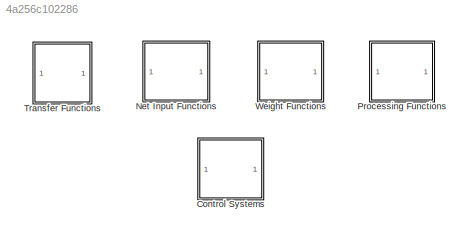
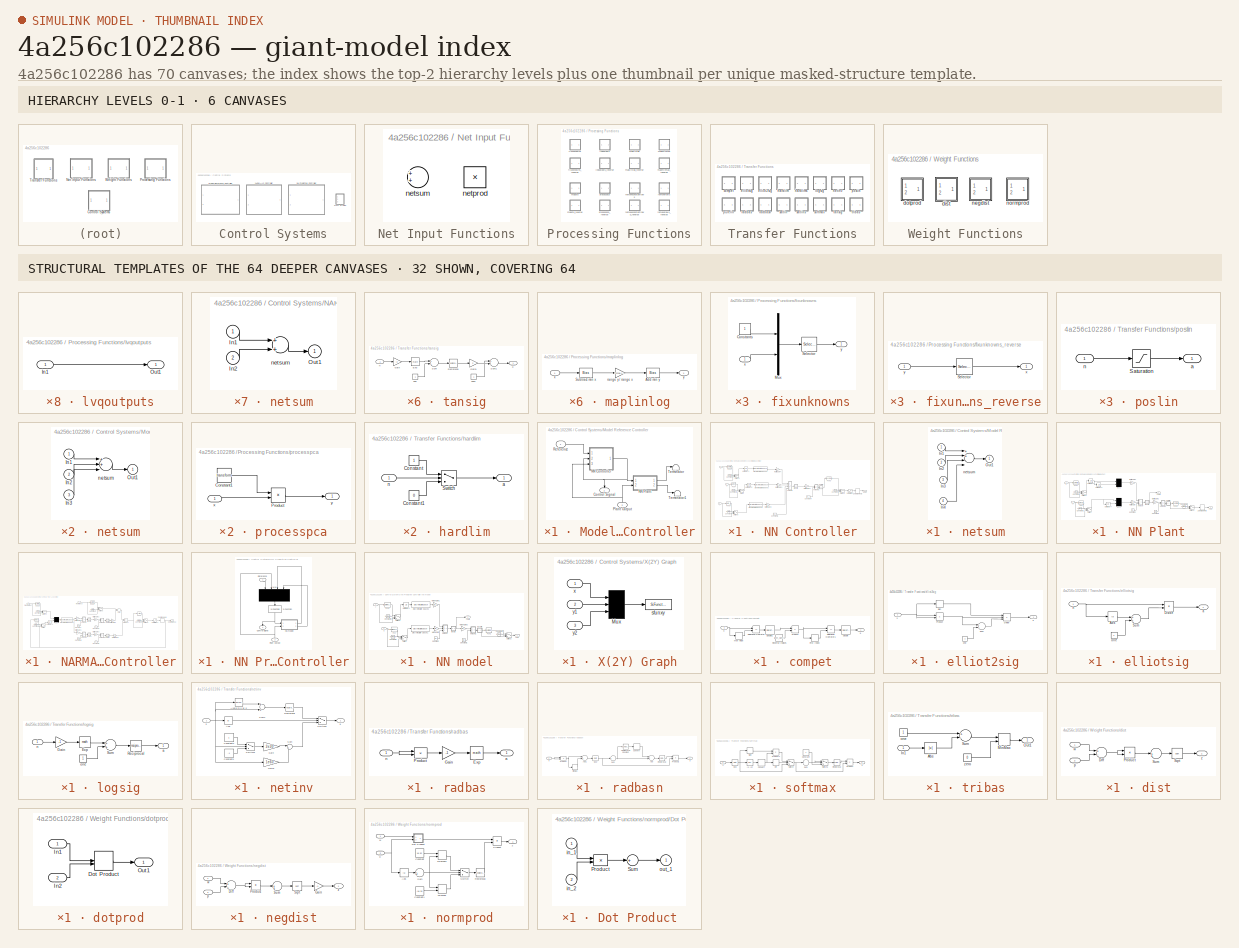
[diagram: thumbnail index - top-2 hierarchy levels (6 canvases) + 32 structural-template representatives of the remaining 64 canvases]
MODEL slx_4a256c102286
KIND library
BLOCK [SubSystem] Control Systems
  Ports = []
  RequestExecContextInheritance = off
BLOCK [SubSystem] Control Systems/Model Reference Controller
  OpenFcn = nncontrolutil('nnmodref','',gcbh,gcb,'');
  Ports = [2, 1]
  RequestExecContextInheritance = off
BLOCK [Outport] Control Systems/Model Reference Controller/Control Signal
  IconDisplay = Port number
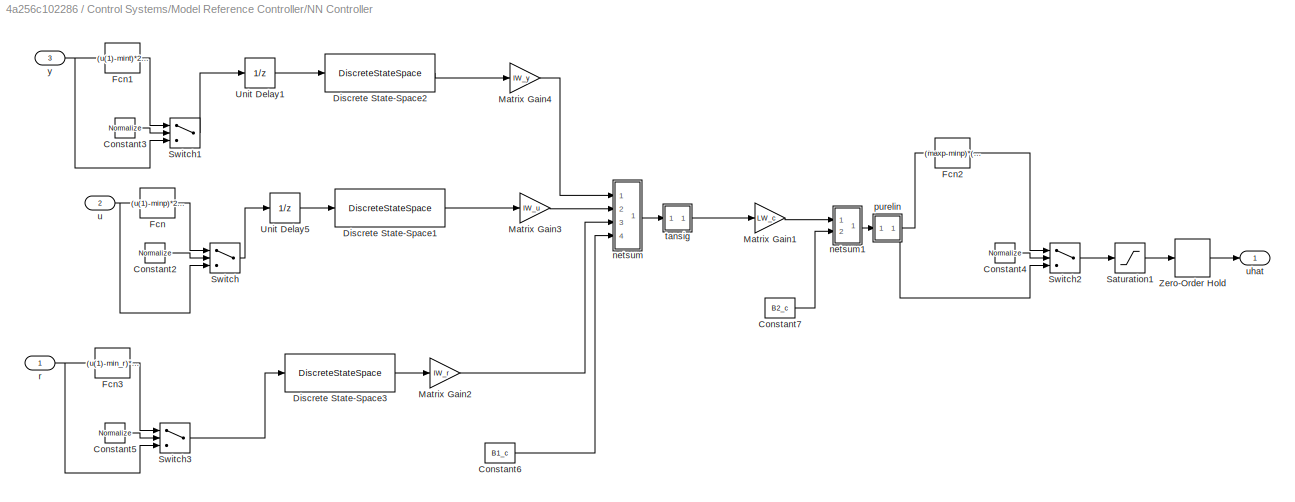
BLOCK [SubSystem] Control Systems/Model Reference Controller/NN Controller
  Ports = [3, 1]
  RequestExecContextInheritance = off
BLOCK [Constant] Control Systems/Model Reference Controller/NN Controller/Constant2
  Value = Normalize
BLOCK [Constant] Control Systems/Model Reference Controller/NN Controller/Constant3
  Value = Normalize
BLOCK [Constant] Control Systems/Model Reference Controller/NN Controller/Constant4
  Value = Normalize
BLOCK [Constant] Control Systems/Model Reference Controller/NN Controller/Constant5
  Value = Normalize
BLOCK [Constant] Control Systems/Model Reference Controller/NN Controller/Constant6
  Value = B1_c
BLOCK [Constant] Control Systems/Model Reference Controller/NN Controller/Constant7
  Value = B2_c
BLOCK [DiscreteStateSpace] Control Systems/Model Reference Controller/NN Controller/Discrete State-Space1
  A = [zeros(1,max([Nic-1 1]));eye(Nic-2,Nic-1)]
  B = eye(max([Nic-1 1]),1)
  C = [zeros(1,max([Nic-1 1]));eye(Nic-1,Nic-1)]
  D = eye(Nic,1)
  SampleTime = Ts
BLOCK [DiscreteStateSpace] Control Systems/Model Reference Controller/NN Controller/Discrete State-Space2
  A = [zeros(1,max([Njc-1 1]));eye(Njc-2,Njc-1)]
  B = eye(max([Njc-1 1]),1)
  C = [zeros(1,max([Njc-1 1]));eye(Njc-1,Njc-1)]
  D = eye(Njc,1)
  SampleTime = Ts
BLOCK [DiscreteStateSpace] Control Systems/Model Reference Controller/NN Controller/Discrete State-Space3
  A = [zeros(1,max([Nrc-1 1]));eye(Nrc-2,Nrc-1)]
  B = eye(max([Nrc-1 1]),1)
  C = [zeros(1,max([Nrc-1 1]));eye(Nrc-1,Nrc-1)]
  D = eye(Nrc,1)
  SampleTime = Ts
BLOCK [Fcn] Control Systems/Model Reference Controller/NN Controller/Fcn
  Expr = (u(1)-minp)*2/(maxp-minp) - 1
BLOCK [Fcn] Control Systems/Model Reference Controller/NN Controller/Fcn1
  Expr = (u(1)-mint)*2/(maxt-mint) - 1
BLOCK [Fcn] Control Systems/Model Reference Controller/NN Controller/Fcn2
  Expr = (maxp-minp)*(u(1)+1)/2 + minp
BLOCK [Fcn] Control Systems/Model Reference Controller/NN Controller/Fcn3
  Expr = (u(1)-min_r)*2/(max_r-min_r) - 1
BLOCK [Gain] Control Systems/Model Reference Controller/NN Controller/Matrix Gain1
  Gain = LW_c
  Multiplication = Matrix(K*u)
BLOCK [Gain] Control Systems/Model Reference Controller/NN Controller/Matrix Gain2
  Gain = IW_r
  Multiplication = Matrix(K*u)
BLOCK [Gain] Control Systems/Model Reference Controller/NN Controller/Matrix Gain3
  Gain = IW_u
  Multiplication = Matrix(K*u)
BLOCK [Gain] Control Systems/Model Reference Controller/NN Controller/Matrix Gain4
  Gain = IW_y
  Multiplication = Matrix(K*u)
BLOCK [Saturate] Control Systems/Model Reference Controller/NN Controller/Saturation1
  InputPortMap = u0
  LowerLimit = min_i
  Ports = [1, 1]
  UpperLimit = max_i
BLOCK [Switch] Control Systems/Model Reference Controller/NN Controller/Switch
  Threshold = 0.5
BLOCK [Switch] Control Systems/Model Reference Controller/NN Controller/Switch1
  Threshold = 0.5
BLOCK [Switch] Control Systems/Model Reference Controller/NN Controller/Switch2
  Threshold = 0.5
BLOCK [Switch] Control Systems/Model Reference Controller/NN Controller/Switch3
  Threshold = 0.5
BLOCK [UnitDelay] Control Systems/Model Reference Controller/NN Controller/Unit Delay1
  SampleTime = Ts
BLOCK [UnitDelay] Control Systems/Model Reference Controller/NN Controller/Unit Delay5
  SampleTime = Ts
BLOCK [ZeroOrderHold] Control Systems/Model Reference Controller/NN Controller/Zero-Order Hold
  SampleTime = Ts
BLOCK [SubSystem] Control Systems/Model Reference Controller/NN Controller/netsum
  Ports = [4, 1]
  RequestExecContextInheritance = off
BLOCK [Inport] Control Systems/Model Reference Controller/NN Controller/netsum/In1
  IconDisplay = Port number
BLOCK [Inport] Control Systems/Model Reference Controller/NN Controller/netsum/In2
  IconDisplay = Port number
  Port = 2
BLOCK [Inport] Control Systems/Model Reference Controller/NN Controller/netsum/In3
  IconDisplay = Port number
  Port = 3
BLOCK [Inport] Control Systems/Model Reference Controller/NN Controller/netsum/In4
  IconDisplay = Port number
  Port = 4
BLOCK [Outport] Control Systems/Model Reference Controller/NN Controller/netsum/Out1
  IconDisplay = Port number
BLOCK [Sum] Control Systems/Model Reference Controller/NN Controller/netsum/netsum
  Inputs = 4
  Ports = [4, 1]
BLOCK [SubSystem] Control Systems/Model Reference Controller/NN Controller/netsum1
  Ports = [2, 1]
  RequestExecContextInheritance = off
BLOCK [Inport] Control Systems/Model Reference Controller/NN Controller/netsum1/In1
  IconDisplay = Port number
BLOCK [Inport] Control Systems/Model Reference Controller/NN Controller/netsum1/In2
  IconDisplay = Port number
  Port = 2
BLOCK [Outport] Control Systems/Model Reference Controller/NN Controller/netsum1/Out1
  IconDisplay = Port number
BLOCK [Sum] Control Systems/Model Reference Controller/NN Controller/netsum1/netsum1
  Inputs = 2
  Ports = [2, 1]
BLOCK [SubSystem] Control Systems/Model Reference Controller/NN Controller/purelin
  Ports = [1, 1]
  RequestExecContextInheritance = off
BLOCK [Outport] Control Systems/Model Reference Controller/NN Controller/purelin/a
  IconDisplay = Port number
BLOCK [Inport] Control Systems/Model Reference Controller/NN Controller/purelin/n
  IconDisplay = Port number
BLOCK [Inport] Control Systems/Model Reference Controller/NN Controller/r
  IconDisplay = Port number
BLOCK [SubSystem] Control Systems/Model Reference Controller/NN Controller/tansig
  Ports = [1, 1]
  RequestExecContextInheritance = off
BLOCK [Math] Control Systems/Model Reference Controller/NN Controller/tansig/Exp
  Ports = [1, 1]
BLOCK [Gain] Control Systems/Model Reference Controller/NN Controller/tansig/Gain
  Gain = -2
BLOCK [Gain] Control Systems/Model Reference Controller/NN Controller/tansig/Gain1
  Gain = 2
BLOCK [Math] Control Systems/Model Reference Controller/NN Controller/tansig/Reciprocal
  Operator = reciprocal
  Ports = [1, 1]
BLOCK [Sum] Control Systems/Model Reference Controller/NN Controller/tansig/Sum
  Ports = [2, 1]
BLOCK [Sum] Control Systems/Model Reference Controller/NN Controller/tansig/Sum1
  Inputs = +-
  Ports = [2, 1]
BLOCK [Outport] Control Systems/Model Reference Controller/NN Controller/tansig/a
  IconDisplay = Port number
BLOCK [Inport] Control Systems/Model Reference Controller/NN Controller/tansig/n
  IconDisplay = Port number
BLOCK [Constant] Control Systems/Model Reference Controller/NN Controller/tansig/one
BLOCK [Constant] Control Systems/Model Reference Controller/NN Controller/tansig/one1
BLOCK [Inport] Control Systems/Model Reference Controller/NN Controller/u
  IconDisplay = Port number
  Port = 2
BLOCK [Outport] Control Systems/Model Reference Controller/NN Controller/uhat
  IconDisplay = Port number
BLOCK [Inport] Control Systems/Model Reference Controller/NN Controller/y
  IconDisplay = Port number
  Port = 3
BLOCK [SubSystem] Control Systems/Model Reference Controller/NN Plant
  Ports = [2, 2]
  RequestExecContextInheritance = off
BLOCK [Constant] Control Systems/Model Reference Controller/NN Plant/Constant
  Value = B1
BLOCK [Constant] Control Systems/Model Reference Controller/NN Plant/Constant1
  Value = B2
BLOCK [Constant] Control Systems/Model Reference Controller/NN Plant/Constant2
  Value = Normalize
BLOCK [Constant] Control Systems/Model Reference Controller/NN Plant/Constant3
  Value = Normalize
BLOCK [Constant] Control Systems/Model Reference Controller/NN Plant/Constant4
  Value = Normalize
BLOCK [Fcn] Control Systems/Model Reference Controller/NN Plant/Fcn
  Expr = (u(1)-minp)*2/(maxp-minp) - 1
BLOCK [Fcn] Control Systems/Model Reference Controller/NN Plant/Fcn1
  Expr = (u(1)-mint)*2/(maxt-mint) - 1
BLOCK [Fcn] Control Systems/Model Reference Controller/NN Plant/Fcn2
  Expr = (maxt-mint)*(u(1)+1)/2 + mint
BLOCK [Gain] Control Systems/Model Reference Controller/NN Plant/Matrix Gain
  Gain = IW
  Multiplication = Matrix(K*u)
BLOCK [Gain] Control Systems/Model Reference Controller/NN Plant/Matrix Gain1
  Gain = LW1_2
  Multiplication = Matrix(K*u)
BLOCK [Gain] Control Systems/Model Reference Controller/NN Plant/Matrix Gain2
  Gain = LW2_1
  Multiplication = Matrix(K*u)
BLOCK [Mux] Control Systems/Model Reference Controller/NN Plant/Mux1
  DisplayOption = signals
  Inputs = 2
  Ports = [2, 1]
BLOCK [Mux] Control Systems/Model Reference Controller/NN Plant/Mux2
  DisplayOption = signals
  Inputs = 2
  Ports = [2, 1]
BLOCK [Switch] Control Systems/Model Reference Controller/NN Plant/Switch
  Threshold = 0.5
BLOCK [Switch] Control Systems/Model Reference Controller/NN Plant/Switch1
  Threshold = 0.5
BLOCK [Switch] Control Systems/Model Reference Controller/NN Plant/Switch2
  Threshold = 0.5
BLOCK [UnitDelay] Control Systems/Model Reference Controller/NN Plant/Unit Delay1
  SampleTime = Ts
BLOCK [UnitDelay] Control Systems/Model Reference Controller/NN Plant/Unit Delay2
  SampleTime = Ts
BLOCK [UnitDelay] Control Systems/Model Reference Controller/NN Plant/Unit Delay4
  SampleTime = Ts
BLOCK [ZeroOrderHold] Control Systems/Model Reference Controller/NN Plant/Zero-Order Hold
  SampleTime = Ts
BLOCK [SubSystem] Control Systems/Model Reference Controller/NN Plant/netsum
  Ports = [3, 1]
  RequestExecContextInheritance = off
BLOCK [Inport] Control Systems/Model Reference Controller/NN Plant/netsum/In1
  IconDisplay = Port number
BLOCK [Inport] Control Systems/Model Reference Controller/NN Plant/netsum/In2
  IconDisplay = Port number
  Port = 2
BLOCK [Inport] Control Systems/Model Reference Controller/NN Plant/netsum/In3
  IconDisplay = Port number
  Port = 3
BLOCK [Outport] Control Systems/Model Reference Controller/NN Plant/netsum/Out1
  IconDisplay = Port number
BLOCK [Sum] Control Systems/Model Reference Controller/NN Plant/netsum/netsum
  Inputs = 3
  Ports = [3, 1]
BLOCK [SubSystem] Control Systems/Model Reference Controller/NN Plant/netsum1
  Ports = [2, 1]
  RequestExecContextInheritance = off
BLOCK [Inport] Control Systems/Model Reference Controller/NN Plant/netsum1/In1
  IconDisplay = Port number
BLOCK [Inport] Control Systems/Model Reference Controller/NN Plant/netsum1/In2
  IconDisplay = Port number
  Port = 2
BLOCK [Outport] Control Systems/Model Reference Controller/NN Plant/netsum1/Out1
  IconDisplay = Port number
BLOCK [Sum] Control Systems/Model Reference Controller/NN Plant/netsum1/netsum1
  Inputs = 2
  Ports = [2, 1]
BLOCK [SubSystem] Control Systems/Model Reference Controller/NN Plant/purelin
  Ports = [1, 1]
  RequestExecContextInheritance = off
BLOCK [Outport] Control Systems/Model Reference Controller/NN Plant/purelin/a
  IconDisplay = Port number
BLOCK [Inport] Control Systems/Model Reference Controller/NN Plant/purelin/n
  IconDisplay = Port number
BLOCK [SubSystem] Control Systems/Model Reference Controller/NN Plant/tansig
  Ports = [1, 1]
  RequestExecContextInheritance = off
BLOCK [Math] Control Systems/Model Reference Controller/NN Plant/tansig/Exp
  Ports = [1, 1]
BLOCK [Gain] Control Systems/Model Reference Controller/NN Plant/tansig/Gain
  Gain = -2
BLOCK [Gain] Control Systems/Model Reference Controller/NN Plant/tansig/Gain1
  Gain = 2
BLOCK [Math] Control Systems/Model Reference Controller/NN Plant/tansig/Reciprocal
  Operator = reciprocal
  Ports = [1, 1]
BLOCK [Sum] Control Systems/Model Reference Controller/NN Plant/tansig/Sum
  Ports = [2, 1]
BLOCK [Sum] Control Systems/Model Reference Controller/NN Plant/tansig/Sum1
  Inputs = +-
  Ports = [2, 1]
BLOCK [Outport] Control Systems/Model Reference Controller/NN Plant/tansig/a
  IconDisplay = Port number
BLOCK [Inport] Control Systems/Model Reference Controller/NN Plant/tansig/n
  IconDisplay = Port number
BLOCK [Constant] Control Systems/Model Reference Controller/NN Plant/tansig/one
BLOCK [Constant] Control Systems/Model Reference Controller/NN Plant/tansig/one1
BLOCK [Inport] Control Systems/Model Reference Controller/NN Plant/u
  IconDisplay = Port number
BLOCK [Inport] Control Systems/Model Reference Controller/NN Plant/y
  IconDisplay = Port number
  Port = 2
BLOCK [Outport] Control Systems/Model Reference Controller/NN Plant/yhat
  IconDisplay = Port number
BLOCK [Outport] Control Systems/Model Reference Controller/NN Plant/yhat1
  IconDisplay = Port number
  Port = 2
BLOCK [Inport] Control Systems/Model Reference Controller/Plant Output
  IconDisplay = Port number
  Port = 2
BLOCK [Inport] Control Systems/Model Reference Controller/Reference
  IconDisplay = Port number
BLOCK [Terminator] Control Systems/Model Reference Controller/Terminator
BLOCK [Terminator] Control Systems/Model Reference Controller/Terminator1
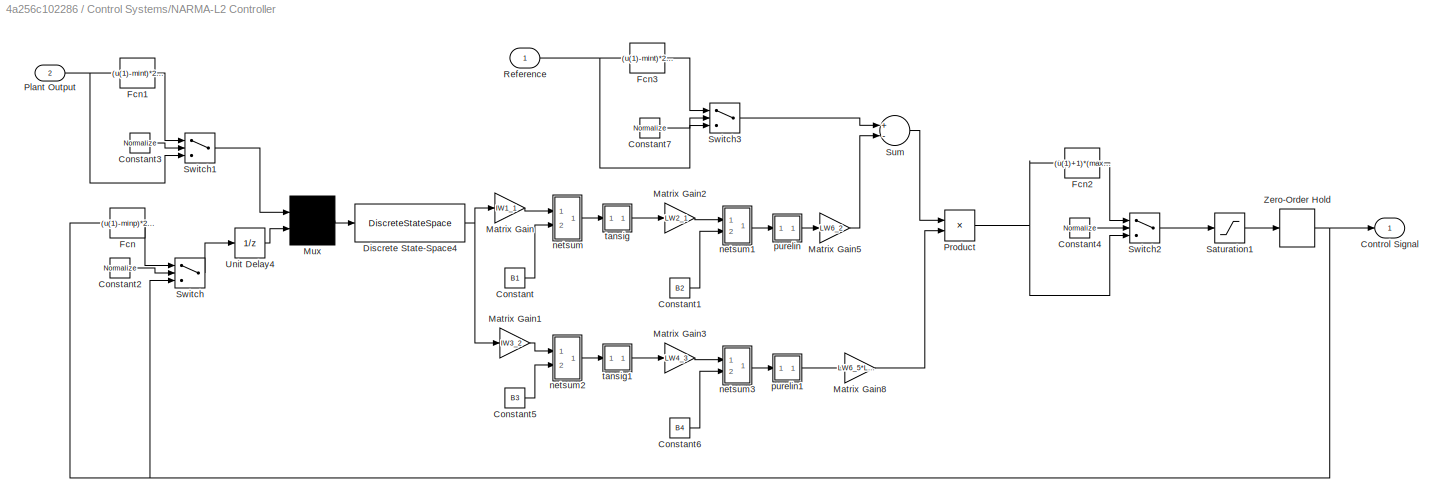
BLOCK [SubSystem] Control Systems/NARMA-L2 Controller
  OpenFcn = nncontrolutil('nnident','',gcbh,gcb,'narma_l2');
  Ports = [2, 1]
  RequestExecContextInheritance = off
BLOCK [Constant] Control Systems/NARMA-L2 Controller/Constant
  Value = B1
BLOCK [Constant] Control Systems/NARMA-L2 Controller/Constant1
  Value = B2
BLOCK [Constant] Control Systems/NARMA-L2 Controller/Constant2
  Value = Normalize
BLOCK [Constant] Control Systems/NARMA-L2 Controller/Constant3
  Value = Normalize
BLOCK [Constant] Control Systems/NARMA-L2 Controller/Constant4
  Value = Normalize
BLOCK [Constant] Control Systems/NARMA-L2 Controller/Constant5
  Value = B3
BLOCK [Constant] Control Systems/NARMA-L2 Controller/Constant6
  Value = B4
BLOCK [Constant] Control Systems/NARMA-L2 Controller/Constant7
  Value = Normalize
BLOCK [Outport] Control Systems/NARMA-L2 Controller/Control Signal
  IconDisplay = Port number
BLOCK [DiscreteStateSpace] Control Systems/NARMA-L2 Controller/Discrete State-Space4
  A = blkdiag([zeros(1,Nj-1);eye(Nj-2,Nj-2) zeros(Nj-2,1)],[zeros(1,Ni-1);eye(Ni-2,Ni-2) zeros(Ni-2,1)])
  B = blkdiag(eye(Nj-1,1),eye(Ni-1,1))
  C = blkdiag([zeros(1,Nj-1);eye(Nj-1,Nj-1)],[zeros(eye(double(Ni>1)),Ni-1);eye(Ni-2,Ni-1)])
  D = blkdiag([1;zeros(Nj-1,1)],[eye(double(Ni>1));zeros(Ni-2,1)])
  SampleTime = Ts
BLOCK [Fcn] Control Systems/NARMA-L2 Controller/Fcn
  Expr = (u(1)-minp)*2/(maxp-minp) - 1
BLOCK [Fcn] Control Systems/NARMA-L2 Controller/Fcn1
  Expr = (u(1)-mint)*2/(maxt-mint) - 1
BLOCK [Fcn] Control Systems/NARMA-L2 Controller/Fcn2
  Expr = (u(1)+1)*(maxp-minp)/2 + minp
BLOCK [Fcn] Control Systems/NARMA-L2 Controller/Fcn3
  Expr = (u(1)-mint)*2/(maxt-mint) - 1
BLOCK [Gain] Control Systems/NARMA-L2 Controller/Matrix Gain
  Gain = IW1_1
  Multiplication = Matrix(K*u)
BLOCK [Gain] Control Systems/NARMA-L2 Controller/Matrix Gain1
  Gain = IW3_2
  Multiplication = Matrix(K*u)
BLOCK [Gain] Control Systems/NARMA-L2 Controller/Matrix Gain2
  Gain = LW2_1
  Multiplication = Matrix(K*u)
BLOCK [Gain] Control Systems/NARMA-L2 Controller/Matrix Gain3
  Gain = LW4_3
  Multiplication = Matrix(K*u)
BLOCK [Gain] Control Systems/NARMA-L2 Controller/Matrix Gain5
  Gain = LW6_2
  Multiplication = Matrix(K*u)
BLOCK [Gain] Control Systems/NARMA-L2 Controller/Matrix Gain8
  Gain = LW6_5*LW5_4*IW5_3
  Multiplication = Matrix(K*u)
BLOCK [Mux] Control Systems/NARMA-L2 Controller/Mux
  DisplayOption = signals
  Inputs = 2
  Ports = [2, 1]
BLOCK [Inport] Control Systems/NARMA-L2 Controller/Plant Output
  IconDisplay = Port number
  Port = 2
BLOCK [Product] Control Systems/NARMA-L2 Controller/Product
  Inputs = */
  Ports = [2, 1]
BLOCK [Inport] Control Systems/NARMA-L2 Controller/Reference
  IconDisplay = Port number
BLOCK [Saturate] Control Systems/NARMA-L2 Controller/Saturation1
  InputPortMap = u0
  LowerLimit = min_i
  Ports = [1, 1]
  UpperLimit = max_i
BLOCK [Sum] Control Systems/NARMA-L2 Controller/Sum
  Inputs = +-
  Ports = [2, 1]
BLOCK [Switch] Control Systems/NARMA-L2 Controller/Switch
  Threshold = 0.5
BLOCK [Switch] Control Systems/NARMA-L2 Controller/Switch1
  Threshold = 0.5
BLOCK [Switch] Control Systems/NARMA-L2 Controller/Switch2
  Threshold = 0.5
BLOCK [Switch] Control Systems/NARMA-L2 Controller/Switch3
  Threshold = 0.5
BLOCK [UnitDelay] Control Systems/NARMA-L2 Controller/Unit Delay4
  SampleTime = Ts
BLOCK [ZeroOrderHold] Control Systems/NARMA-L2 Controller/Zero-Order Hold
  SampleTime = Ts
BLOCK [SubSystem] Control Systems/NARMA-L2 Controller/netsum
  Ports = [2, 1]
  RequestExecContextInheritance = off
BLOCK [Inport] Control Systems/NARMA-L2 Controller/netsum/In1
  IconDisplay = Port number
BLOCK [Inport] Control Systems/NARMA-L2 Controller/netsum/In2
  IconDisplay = Port number
  Port = 2
BLOCK [Outport] Control Systems/NARMA-L2 Controller/netsum/Out1
  IconDisplay = Port number
BLOCK [Sum] Control Systems/NARMA-L2 Controller/netsum/netsum
  Inputs = 2
  Ports = [2, 1]
BLOCK [SubSystem] Control Systems/NARMA-L2 Controller/netsum1
  Ports = [2, 1]
  RequestExecContextInheritance = off
BLOCK [Inport] Control Systems/NARMA-L2 Controller/netsum1/In1
  IconDisplay = Port number
BLOCK [Inport] Control Systems/NARMA-L2 Controller/netsum1/In2
  IconDisplay = Port number
  Port = 2
BLOCK [Outport] Control Systems/NARMA-L2 Controller/netsum1/Out1
  IconDisplay = Port number
BLOCK [Sum] Control Systems/NARMA-L2 Controller/netsum1/netsum1
  Inputs = 2
  Ports = [2, 1]
BLOCK [SubSystem] Control Systems/NARMA-L2 Controller/netsum2
  Ports = [2, 1]
  RequestExecContextInheritance = off
BLOCK [Inport] Control Systems/NARMA-L2 Controller/netsum2/In1
  IconDisplay = Port number
BLOCK [Inport] Control Systems/NARMA-L2 Controller/netsum2/In2
  IconDisplay = Port number
  Port = 2
BLOCK [Outport] Control Systems/NARMA-L2 Controller/netsum2/Out1
  IconDisplay = Port number
BLOCK [Sum] Control Systems/NARMA-L2 Controller/netsum2/netsum
  Inputs = 2
  Ports = [2, 1]
BLOCK [SubSystem] Control Systems/NARMA-L2 Controller/netsum3
  Ports = [2, 1]
  RequestExecContextInheritance = off
BLOCK [Inport] Control Systems/NARMA-L2 Controller/netsum3/In1
  IconDisplay = Port number
BLOCK [Inport] Control Systems/NARMA-L2 Controller/netsum3/In2
  IconDisplay = Port number
  Port = 2
BLOCK [Outport] Control Systems/NARMA-L2 Controller/netsum3/Out1
  IconDisplay = Port number
BLOCK [Sum] Control Systems/NARMA-L2 Controller/netsum3/netsum1
  Inputs = 2
  Ports = [2, 1]
BLOCK [SubSystem] Control Systems/NARMA-L2 Controller/purelin
  Ports = [1, 1]
  RequestExecContextInheritance = off
BLOCK [Outport] Control Systems/NARMA-L2 Controller/purelin/a
  IconDisplay = Port number
BLOCK [Inport] Control Systems/NARMA-L2 Controller/purelin/n
  IconDisplay = Port number
BLOCK [SubSystem] Control Systems/NARMA-L2 Controller/purelin1
  Ports = [1, 1]
  RequestExecContextInheritance = off
BLOCK [Outport] Control Systems/NARMA-L2 Controller/purelin1/a
  IconDisplay = Port number
BLOCK [Inport] Control Systems/NARMA-L2 Controller/purelin1/n
  IconDisplay = Port number
BLOCK [SubSystem] Control Systems/NARMA-L2 Controller/tansig
  Ports = [1, 1]
  RequestExecContextInheritance = off
BLOCK [Math] Control Systems/NARMA-L2 Controller/tansig/Exp
  Ports = [1, 1]
BLOCK [Gain] Control Systems/NARMA-L2 Controller/tansig/Gain
  Gain = -2
BLOCK [Gain] Control Systems/NARMA-L2 Controller/tansig/Gain1
  Gain = 2
BLOCK [Math] Control Systems/NARMA-L2 Controller/tansig/Reciprocal
  Operator = reciprocal
  Ports = [1, 1]
BLOCK [Sum] Control Systems/NARMA-L2 Controller/tansig/Sum
  Ports = [2, 1]
BLOCK [Sum] Control Systems/NARMA-L2 Controller/tansig/Sum1
  Inputs = +-
  Ports = [2, 1]
BLOCK [Outport] Control Systems/NARMA-L2 Controller/tansig/a
  IconDisplay = Port number
BLOCK [Inport] Control Systems/NARMA-L2 Controller/tansig/n
  IconDisplay = Port number
BLOCK [Constant] Control Systems/NARMA-L2 Controller/tansig/one
BLOCK [Constant] Control Systems/NARMA-L2 Controller/tansig/one1
BLOCK [SubSystem] Control Systems/NARMA-L2 Controller/tansig1
  Ports = [1, 1]
  RequestExecContextInheritance = off
BLOCK [Math] Control Systems/NARMA-L2 Controller/tansig1/Exp
  Ports = [1, 1]
BLOCK [Gain] Control Systems/NARMA-L2 Controller/tansig1/Gain
  Gain = -2
BLOCK [Gain] Control Systems/NARMA-L2 Controller/tansig1/Gain1
  Gain = 2
BLOCK [Math] Control Systems/NARMA-L2 Controller/tansig1/Reciprocal
  Operator = reciprocal
  Ports = [1, 1]
BLOCK [Sum] Control Systems/NARMA-L2 Controller/tansig1/Sum
  Ports = [2, 1]
BLOCK [Sum] Control Systems/NARMA-L2 Controller/tansig1/Sum1
  Inputs = +-
  Ports = [2, 1]
BLOCK [Outport] Control Systems/NARMA-L2 Controller/tansig1/a
  IconDisplay = Port number
BLOCK [Inport] Control Systems/NARMA-L2 Controller/tansig1/n
  IconDisplay = Port number
BLOCK [Constant] Control Systems/NARMA-L2 Controller/tansig1/one
BLOCK [Constant] Control Systems/NARMA-L2 Controller/tansig1/one1
BLOCK [SubSystem] Control Systems/NN Predictive Controller
  OpenFcn = nncontrolutil('nnpredict','',gcbh,gcb);
  Ports = [2, 1]
  RequestExecContextInheritance = off
BLOCK [Outport] Control Systems/NN Predictive Controller/Control Signal
  IconDisplay = Port number
BLOCK [Mux] Control Systems/NN Predictive Controller/Mux
  DisplayOption = signals
  Ports = [4, 1]
BLOCK [SubSystem] Control Systems/NN Predictive Controller/NN model
  Ports = [2, 2]
  RequestExecContextInheritance = off
BLOCK [Constant] Control Systems/NN Predictive Controller/NN model/Constant
  Value = B1
BLOCK [Constant] Control Systems/NN Predictive Controller/NN model/Constant1
  Value = B2
BLOCK [Constant] Control Systems/NN Predictive Controller/NN model/Constant2
  Value = Normalize
BLOCK [Constant] Control Systems/NN Predictive Controller/NN model/Constant3
  Value = Normalize
BLOCK [Constant] Control Systems/NN Predictive Controller/NN model/Constant4
  Value = Normalize
BLOCK [DiscreteStateSpace] Control Systems/NN Predictive Controller/NN model/Discrete State-Space1
  A = [0 zeros(1,Ni-2);eye(Ni-2,Ni-1)]
  B = [zeros(double(Ni==1));eye(Ni-1,1)]
  C = [0 zeros(1,Ni-2);eye(Ni-1,Ni-1)]
  D = eye(Ni,1)
  SampleTime = Ts
BLOCK [DiscreteStateSpace] Control Systems/NN Predictive Controller/NN model/Discrete State-Space2
  A = [0 zeros(1,Nj-2);eye(Nj-2,Nj-1)]
  B = [zeros(double(Nj==1));eye(Nj-1,1)]
  C = [0 zeros(1,Nj-2);eye(Nj-1,Nj-1)]
  D = eye(Nj,1)
  SampleTime = Ts
BLOCK [Fcn] Control Systems/NN Predictive Controller/NN model/Fcn
  Expr = (u(1)-minp)*2/(maxp-minp) - 1
BLOCK [Fcn] Control Systems/NN Predictive Controller/NN model/Fcn1
  Expr = (u(1)-mint)*2/(maxt-mint) - 1
BLOCK [Fcn] Control Systems/NN Predictive Controller/NN model/Fcn2
  Expr = (maxt-mint)*(u(1)+1)/2 + mint
BLOCK [Gain] Control Systems/NN Predictive Controller/NN model/Matrix Gain
  Gain = IW
  Multiplication = Matrix(K*u)
BLOCK [Gain] Control Systems/NN Predictive Controller/NN model/Matrix Gain1
  Gain = LW1_2
  Multiplication = Matrix(K*u)
BLOCK [Gain] Control Systems/NN Predictive Controller/NN model/Matrix Gain2
  Gain = LW2_1
  Multiplication = Matrix(K*u)
BLOCK [Switch] Control Systems/NN Predictive Controller/NN model/Switch
  Threshold = 0.5
BLOCK [Switch] Control Systems/NN Predictive Controller/NN model/Switch1
  Threshold = 0.5
BLOCK [Switch] Control Systems/NN Predictive Controller/NN model/Switch2
  Threshold = 0.5
BLOCK [UnitDelay] Control Systems/NN Predictive Controller/NN model/Unit Delay1
  SampleTime = Ts
BLOCK [SubSystem] Control Systems/NN Predictive Controller/NN model/netsum
  Ports = [3, 1]
  RequestExecContextInheritance = off
BLOCK [Inport] Control Systems/NN Predictive Controller/NN model/netsum/In1
  IconDisplay = Port number
BLOCK [Inport] Control Systems/NN Predictive Controller/NN model/netsum/In2
  IconDisplay = Port number
  Port = 2
BLOCK [Inport] Control Systems/NN Predictive Controller/NN model/netsum/In3
  IconDisplay = Port number
  Port = 3
BLOCK [Outport] Control Systems/NN Predictive Controller/NN model/netsum/Out1
  IconDisplay = Port number
BLOCK [Sum] Control Systems/NN Predictive Controller/NN model/netsum/netsum
  Inputs = 3
  Ports = [3, 1]
BLOCK [SubSystem] Control Systems/NN Predictive Controller/NN model/netsum1
  Ports = [2, 1]
  RequestExecContextInheritance = off
BLOCK [Inport] Control Systems/NN Predictive Controller/NN model/netsum1/In1
  IconDisplay = Port number
BLOCK [Inport] Control Systems/NN Predictive Controller/NN model/netsum1/In2
  IconDisplay = Port number
  Port = 2
BLOCK [Outport] Control Systems/NN Predictive Controller/NN model/netsum1/Out1
  IconDisplay = Port number
BLOCK [Sum] Control Systems/NN Predictive Controller/NN model/netsum1/netsum1
  Inputs = 2
  Ports = [2, 1]
BLOCK [SubSystem] Control Systems/NN Predictive Controller/NN model/purelin
  Ports = [1, 1]
  RequestExecContextInheritance = off
BLOCK [Outport] Control Systems/NN Predictive Controller/NN model/purelin/a
  IconDisplay = Port number
BLOCK [Inport] Control Systems/NN Predictive Controller/NN model/purelin/n
  IconDisplay = Port number
BLOCK [SubSystem] Control Systems/NN Predictive Controller/NN model/tansig
  Ports = [1, 1]
  RequestExecContextInheritance = off
BLOCK [Math] Control Systems/NN Predictive Controller/NN model/tansig/Exp
  Ports = [1, 1]
BLOCK [Gain] Control Systems/NN Predictive Controller/NN model/tansig/Gain
  Gain = -2
BLOCK [Gain] Control Systems/NN Predictive Controller/NN model/tansig/Gain1
  Gain = 2
BLOCK [Math] Control Systems/NN Predictive Controller/NN model/tansig/Reciprocal
  Operator = reciprocal
  Ports = [1, 1]
BLOCK [Sum] Control Systems/NN Predictive Controller/NN model/tansig/Sum
  Ports = [2, 1]
BLOCK [Sum] Control Systems/NN Predictive Controller/NN model/tansig/Sum1
  Inputs = +-
  Ports = [2, 1]
BLOCK [Outport] Control Systems/NN Predictive Controller/NN model/tansig/a
  IconDisplay = Port number
BLOCK [Inport] Control Systems/NN Predictive Controller/NN model/tansig/n
  IconDisplay = Port number
BLOCK [Constant] Control Systems/NN Predictive Controller/NN model/tansig/one
BLOCK [Constant] Control Systems/NN Predictive Controller/NN model/tansig/one1
BLOCK [Inport] Control Systems/NN Predictive Controller/NN model/u
  IconDisplay = Port number
BLOCK [Inport] Control Systems/NN Predictive Controller/NN model/y
  IconDisplay = Port number
  Port = 2
BLOCK [Outport] Control Systems/NN Predictive Controller/NN model/yhat
  IconDisplay = Port number
BLOCK [Outport] Control Systems/NN Predictive Controller/NN model/yhat1
  IconDisplay = Port number
  Port = 2
BLOCK [Inport] Control Systems/NN Predictive Controller/Plant output
  IconDisplay = Port number
  Port = 2
BLOCK [Inport] Control Systems/NN Predictive Controller/Reference
  IconDisplay = Port number
BLOCK [S-Function] Control Systems/NN Predictive Controller/S-Function
  EnableBusSupport = off
  FunctionName = predopt
  Parameters = N2,Ts,Nu,maxiter,csrchfun,rho,alpha,S1,IW,LW1_2,LW2_1,B1,B2,Ni,Nj,min_i,max_i,minp,maxp,mint,maxt,Normalize
  Ports = [1, 1]
BLOCK [SubSystem] Control Systems/X(2Y) Graph
  CopyFcn = sfunxy2([],[],[],'CopyBlock')
  DeleteFcn = sfunxy2([],[],[],'DeleteBlock')
  LoadFcn = sfunxy2([],[],[],'LoadBlock')
  NameChangeFcn = sfunxy2([],[],[],'NameChange')
  Ports = [3]
  RequestExecContextInheritance = off
  StartFcn = sfunxy2([],[],[],'Start')
  StopFcn = sfunxy2([],[],[],'Stop')
BLOCK [Mux] Control Systems/X(2Y) Graph/Mux
  Inputs = 3
  Ports = [3, 1]
BLOCK [S-Function] Control Systems/X(2Y) Graph/sfunxy
  EnableBusSupport = off
  FunctionName = sfunxy2
  Parameters = [xmin xmax ymin ymax], st
  Ports = [1]
BLOCK [Inport] Control Systems/X(2Y) Graph/x
  IconDisplay = Port number
BLOCK [Inport] Control Systems/X(2Y) Graph/y1
  IconDisplay = Port number
  Port = 2
BLOCK [Inport] Control Systems/X(2Y) Graph/y2
  IconDisplay = Port number
  Port = 3
BLOCK [SubSystem] Net Input Functions
  Ports = []
  RequestExecContextInheritance = off
BLOCK [Product] Net Input Functions/netprod
  Ports = [2, 1]
BLOCK [Sum] Net Input Functions/netsum
  Inputs = 2
  Ports = [2, 1]
BLOCK [SubSystem] Processing Functions
  Ports = []
  RequestExecContextInheritance = off
BLOCK [SubSystem] Processing Functions/fixunknowns
  Ports = [1, 1]
  RequestExecContextInheritance = off
BLOCK [Constant] Processing Functions/fixunknowns/Constants
BLOCK [Mux] Processing Functions/fixunknowns/Mux
  DisplayOption = bar
  Inputs = 2
  Ports = [2, 1]
BLOCK [Selector] Processing Functions/fixunknowns/Selector
  IndexMode = Zero-based
  Indices = indices
  InputPortWidth = inputSize+1
  Ports = [1, 1]
BLOCK [Inport] Processing Functions/fixunknowns/x
  IconDisplay = Port number
BLOCK [Outport] Processing Functions/fixunknowns/y
  IconDisplay = Port number
BLOCK [SubSystem] Processing Functions/fixunknowns_reverse
  Ports = [1, 1]
  RequestExecContextInheritance = off
BLOCK [Selector] Processing Functions/fixunknowns_reverse/Selector
  Indices = indices
  InputPortWidth = inputSize
  Ports = [1, 1]
BLOCK [Outport] Processing Functions/fixunknowns_reverse/x
  IconDisplay = Port number
BLOCK [Inport] Processing Functions/fixunknowns_reverse/y
  IconDisplay = Port number
BLOCK [SubSystem] Processing Functions/lvqoutputs
  Ports = [1, 1]
  RequestExecContextInheritance = off
BLOCK [Inport] Processing Functions/lvqoutputs/In1
  IconDisplay = Port number
BLOCK [Outport] Processing Functions/lvqoutputs/Out1
  IconDisplay = Port number
BLOCK [SubSystem] Processing Functions/lvqoutputs_reverse
  Ports = [1, 1]
  RequestExecContextInheritance = off
BLOCK [Inport] Processing Functions/lvqoutputs_reverse/In1
  IconDisplay = Port number
BLOCK [Outport] Processing Functions/lvqoutputs_reverse/Out1
  IconDisplay = Port number
BLOCK [SubSystem] Processing Functions/maplinlog
  Ports = [1, 1]
  RequestExecContextInheritance = off
BLOCK [Bias] Processing Functions/maplinlog/Add min y
  Bias = ymin
  SaturateOnIntegerOverflow = off
BLOCK [Bias] Processing Functions/maplinlog/Subtract min x
  Bias = -xmin
  SaturateOnIntegerOverflow = off
BLOCK [Gain] Processing Functions/maplinlog/range y // range x
  Gain = (ymax-ymin)./(xmax-xmin)
  OutDataTypeStr = Inherit: Inherit via internal rule
  ParamDataTypeStr = Inherit: Inherit via internal rule
  SaturateOnIntegerOverflow = off
BLOCK [Inport] Processing Functions/maplinlog/x
  IconDisplay = Port number
BLOCK [Outport] Processing Functions/maplinlog/y
  IconDisplay = Port number
BLOCK [SubSystem] Processing Functions/maplinlog_reverse
  Ports = [1, 1]
  RequestExecContextInheritance = off
BLOCK [Bias] Processing Functions/maplinlog_reverse/Add min x
  Bias = xmin
  SaturateOnIntegerOverflow = off
BLOCK [Gain] Processing Functions/maplinlog_reverse/Divide by range y
  Gain = (xmax-xmin)./(ymax-ymin)
  OutDataTypeStr = Inherit: Inherit via internal rule
  ParamDataTypeStr = Inherit: Inherit via internal rule
  SaturateOnIntegerOverflow = off
BLOCK [Bias] Processing Functions/maplinlog_reverse/Subtract min y
  Bias = -ymin
  SaturateOnIntegerOverflow = off
BLOCK [Outport] Processing Functions/maplinlog_reverse/x
  IconDisplay = Port number
BLOCK [Inport] Processing Functions/maplinlog_reverse/y
  IconDisplay = Port number
BLOCK [SubSystem] Processing Functions/mapminmax
  Ports = [1, 1]
  RequestExecContextInheritance = off
BLOCK [Bias] Processing Functions/mapminmax/Add min y
  Bias = ymin
  SaturateOnIntegerOverflow = off
BLOCK [Bias] Processing Functions/mapminmax/Subtract min x
  Bias = -xmin
  SaturateOnIntegerOverflow = off
BLOCK [Gain] Processing Functions/mapminmax/range y // range x
  Gain = (ymax-ymin)./(xmax-xmin)
  OutDataTypeStr = Inherit: Inherit via internal rule
  ParamDataTypeStr = Inherit: Inherit via internal rule
  SaturateOnIntegerOverflow = off
BLOCK [Inport] Processing Functions/mapminmax/x
  IconDisplay = Port number
BLOCK [Outport] Processing Functions/mapminmax/y
  IconDisplay = Port number
BLOCK [SubSystem] Processing Functions/mapminmax_reverse
  Ports = [1, 1]
  RequestExecContextInheritance = off
BLOCK [Bias] Processing Functions/mapminmax_reverse/Add min x
  Bias = xmin
  SaturateOnIntegerOverflow = off
BLOCK [Gain] Processing Functions/mapminmax_reverse/Divide by range y
  Gain = (xmax-xmin)./(ymax-ymin)
  OutDataTypeStr = Inherit: Inherit via internal rule
  ParamDataTypeStr = Inherit: Inherit via internal rule
  SaturateOnIntegerOverflow = off
BLOCK [Bias] Processing Functions/mapminmax_reverse/Subtract min y
  Bias = -ymin
  SaturateOnIntegerOverflow = off
BLOCK [Outport] Processing Functions/mapminmax_reverse/x
  IconDisplay = Port number
BLOCK [Inport] Processing Functions/mapminmax_reverse/y
  IconDisplay = Port number
BLOCK [SubSystem] Processing Functions/mapstd
  Ports = [1, 1]
  RequestExecContextInheritance = off
BLOCK [Bias] Processing Functions/mapstd/Add y mean
  Bias = ymean
  SaturateOnIntegerOverflow = off
BLOCK [Bias] Processing Functions/mapstd/Subtract x mean
  Bias = -xmean
  SaturateOnIntegerOverflow = off
BLOCK [Inport] Processing Functions/mapstd/x
  IconDisplay = Port number
BLOCK [Outport] Processing Functions/mapstd/y
  IconDisplay = Port number
BLOCK [Gain] Processing Functions/mapstd/y std // x std
  Gain = ystd./xstd
  OutDataTypeStr = Inherit: Inherit via internal rule
  ParamDataTypeStr = Inherit: Inherit via internal rule
  SaturateOnIntegerOverflow = off
BLOCK [SubSystem] Processing Functions/mapstd_reverse
  Ports = [1, 1]
  RequestExecContextInheritance = off
BLOCK [Bias] Processing Functions/mapstd_reverse/Add x mean
  Bias = xmean
  SaturateOnIntegerOverflow = off
BLOCK [Bias] Processing Functions/mapstd_reverse/Subtract y mean
  Bias = -ymean
  SaturateOnIntegerOverflow = off
BLOCK [Outport] Processing Functions/mapstd_reverse/x
  IconDisplay = Port number
BLOCK [Gain] Processing Functions/mapstd_reverse/x std // y std
  Gain = xstd./ystd
  OutDataTypeStr = Inherit: Inherit via internal rule
  ParamDataTypeStr = Inherit: Inherit via internal rule
  SaturateOnIntegerOverflow = off
BLOCK [Inport] Processing Functions/mapstd_reverse/y
  IconDisplay = Port number
BLOCK [SubSystem] Processing Functions/processpca
  Ports = [1, 1]
  RequestExecContextInheritance = off
BLOCK [Constant] Processing Functions/processpca/Constant1
  Value = transform
  VectorParams1D = off
BLOCK [Product] Processing Functions/processpca/Product
  InputSameDT = off
  Multiplication = Matrix(*)
  OutDataTypeStr = Inherit: Inherit via internal rule
  Ports = [2, 1]
  SaturateOnIntegerOverflow = off
BLOCK [Inport] Processing Functions/processpca/x
  IconDisplay = Port number
BLOCK [Outport] Processing Functions/processpca/y
  IconDisplay = Port number
BLOCK [SubSystem] Processing Functions/processpca_reverse
  Ports = [1, 1]
  RequestExecContextInheritance = off
BLOCK [Constant] Processing Functions/processpca_reverse/Constant1
  Value = inverse_transform
  VectorParams1D = off
BLOCK [Product] Processing Functions/processpca_reverse/Product
  InputSameDT = off
  Multiplication = Matrix(*)
  OutDataTypeStr = Inherit: Inherit via internal rule
  Ports = [2, 1]
  SaturateOnIntegerOverflow = off
BLOCK [Outport] Processing Functions/processpca_reverse/x
  IconDisplay = Port number
BLOCK [Inport] Processing Functions/processpca_reverse/y
  IconDisplay = Port number
BLOCK [SubSystem] Processing Functions/removeconstantrows
  Ports = [1, 1]
  RequestExecContextInheritance = off
BLOCK [Selector] Processing Functions/removeconstantrows/Selector
  Indices = keep
  InputPortWidth = inputSize
  Ports = [1, 1]
BLOCK [Inport] Processing Functions/removeconstantrows/x
  IconDisplay = Port number
BLOCK [Outport] Processing Functions/removeconstantrows/y
  IconDisplay = Port number
BLOCK [SubSystem] Processing Functions/removeconstantrows_reverse
  Ports = [1, 1]
  RequestExecContextInheritance = off
BLOCK [Constant] Processing Functions/removeconstantrows_reverse/Constants
  Value = [constants; 0]
BLOCK [Mux] Processing Functions/removeconstantrows_reverse/Mux
  DisplayOption = bar
  Inputs = 2
  Ports = [2, 1]
BLOCK [Selector] Processing Functions/removeconstantrows_reverse/Selector
  Indices = rearrange
  InputPortWidth = length(rearrange)+1
  Ports = [1, 1]
BLOCK [Outport] Processing Functions/removeconstantrows_reverse/x
  IconDisplay = Port number
BLOCK [Inport] Processing Functions/removeconstantrows_reverse/y
  IconDisplay = Port number
BLOCK [SubSystem] Processing Functions/removerows
  Ports = [1, 1]
  RequestExecContextInheritance = off
BLOCK [Selector] Processing Functions/removerows/Selector
  Indices = keep
  InputPortWidth = inputSize
  Ports = [1, 1]
BLOCK [Inport] Processing Functions/removerows/x
  IconDisplay = Port number
BLOCK [Outport] Processing Functions/removerows/y
  IconDisplay = Port number
BLOCK [SubSystem] Processing Functions/removerows_reverse
  Ports = [1, 1]
  RequestExecContextInheritance = off
BLOCK [Constant] Processing Functions/removerows_reverse/Constant1
  Value = 0
BLOCK [Mux] Processing Functions/removerows_reverse/Mux
  DisplayOption = bar
  Inputs = 2
  Ports = [2, 1]
BLOCK [Selector] Processing Functions/removerows_reverse/Selector
  IndexMode = Zero-based
  Indices = rearrange
  InputPortWidth = inputSize+1
  Ports = [1, 1]
BLOCK [Outport] Processing Functions/removerows_reverse/x
  IconDisplay = Port number
BLOCK [Inport] Processing Functions/removerows_reverse/y
  IconDisplay = Port number
BLOCK [SubSystem] Transfer Functions
  Ports = []
  RequestExecContextInheritance = off
BLOCK [SubSystem] Transfer Functions/compet
  Ports = [1, 1]
  RequestExecContextInheritance = off
BLOCK [DataTypeConversion] Transfer Functions/compet/Double
  OutDataTypeStr = double
  RndMeth = Floor
  SaturateOnIntegerOverflow = off
BLOCK [DataTypeConversion] Transfer Functions/compet/Double1
  OutDataTypeStr = double
  RndMeth = Floor
  SaturateOnIntegerOverflow = off
BLOCK [MinMax] Transfer Functions/compet/First Index
  Function = max
  InputSameDT = off
  Ports = [1, 1]
  SaturateOnIntegerOverflow = off
BLOCK [MinMax] Transfer Functions/compet/Max Value
  Function = max
  InputSameDT = off
  Ports = [1, 1]
  SaturateOnIntegerOverflow = off
BLOCK [Product] Transfer Functions/compet/Product
  InputSameDT = off
  OutDataTypeStr = Inherit: Inherit via internal rule
  Ports = [2, 1]
  SaturateOnIntegerOverflow = off
BLOCK [RelationalOperator] Transfer Functions/compet/Relational Operator
  InputSameDT = off
  Operator = ==
  OutDataTypeStr = boolean
  Ports = [2, 1]
BLOCK [RelationalOperator] Transfer Functions/compet/Relational Operator1
  InputSameDT = off
  Operator = ==
  OutDataTypeStr = boolean
  Ports = [2, 1]
BLOCK [Constant] Transfer Functions/compet/Reverse Indices
  Value = layer_size:-1:1
BLOCK [Outport] Transfer Functions/compet/a
  IconDisplay = Port number
  InitialOutput = 0
BLOCK [Inport] Transfer Functions/compet/n
  IconDisplay = Port number
BLOCK [SubSystem] Transfer Functions/elliot2sig
  Ports = [1, 1]
  RequestExecContextInheritance = off
BLOCK [Product] Transfer Functions/elliot2sig/Divide
  InputSameDT = off
  Inputs = **/
  OutDataTypeStr = Inherit: Inherit via internal rule
  Ports = [3, 1]
  RndMeth = Floor
  SaturateOnIntegerOverflow = off
BLOCK [Product] Transfer Functions/elliot2sig/Product
  InputSameDT = off
  OutDataTypeStr = Inherit: Inherit via internal rule
  Ports = [2, 1]
  SaturateOnIntegerOverflow = off
BLOCK [Signum] Transfer Functions/elliot2sig/Sign
BLOCK [Sum] Transfer Functions/elliot2sig/Sum
  Ports = [2, 1]
BLOCK [Outport] Transfer Functions/elliot2sig/a
  IconDisplay = Port number
  InitialOutput = 0
BLOCK [Inport] Transfer Functions/elliot2sig/n
  IconDisplay = Port number
BLOCK [Constant] Transfer Functions/elliot2sig/one
BLOCK [SubSystem] Transfer Functions/elliotsig
  Ports = [1, 1]
  RequestExecContextInheritance = off
BLOCK [Abs] Transfer Functions/elliotsig/Abs
  SaturateOnIntegerOverflow = off
BLOCK [Product] Transfer Functions/elliotsig/Divide
  InputSameDT = off
  Inputs = */
  OutDataTypeStr = Inherit: Inherit via internal rule
  Ports = [2, 1]
  RndMeth = Floor
  SaturateOnIntegerOverflow = off
BLOCK [Sum] Transfer Functions/elliotsig/Sum
  Ports = [2, 1]
BLOCK [Outport] Transfer Functions/elliotsig/a
  IconDisplay = Port number
  InitialOutput = 0
BLOCK [Inport] Transfer Functions/elliotsig/n
  IconDisplay = Port number
BLOCK [Constant] Transfer Functions/elliotsig/one
BLOCK [SubSystem] Transfer Functions/hardlim
  Ports = [1, 1]
  RequestExecContextInheritance = off
BLOCK [Constant] Transfer Functions/hardlim/Constant
BLOCK [Constant] Transfer Functions/hardlim/Constant1
  Value = 0
BLOCK [Switch] Transfer Functions/hardlim/Switch
  InputSameDT = off
  SaturateOnIntegerOverflow = off
BLOCK [Outport] Transfer Functions/hardlim/a
  IconDisplay = Port number
  InitialOutput = 0
BLOCK [Inport] Transfer Functions/hardlim/n
  IconDisplay = Port number
BLOCK [SubSystem] Transfer Functions/hardlims
  Ports = [1, 1]
  RequestExecContextInheritance = off
BLOCK [Constant] Transfer Functions/hardlims/Constant
BLOCK [Constant] Transfer Functions/hardlims/Constant1
  Value = -1
BLOCK [Switch] Transfer Functions/hardlims/Switch
  InputSameDT = off
  SaturateOnIntegerOverflow = off
BLOCK [Outport] Transfer Functions/hardlims/a
  IconDisplay = Port number
  InitialOutput = 0
BLOCK [Inport] Transfer Functions/hardlims/n
  IconDisplay = Port number
BLOCK [SubSystem] Transfer Functions/logsig
  Ports = [1, 1]
  RequestExecContextInheritance = off
BLOCK [Math] Transfer Functions/logsig/Exp
  Ports = [1, 1]
BLOCK [Gain] Transfer Functions/logsig/Gain
  Gain = -1
BLOCK [Math] Transfer Functions/logsig/Reciprocal
  Operator = reciprocal
  Ports = [1, 1]
BLOCK [Sum] Transfer Functions/logsig/Sum
  Ports = [2, 1]
BLOCK [Outport] Transfer Functions/logsig/a
  IconDisplay = Port number
  InitialOutput = 0
BLOCK [Inport] Transfer Functions/logsig/n
  IconDisplay = Port number
BLOCK [Constant] Transfer Functions/logsig/one
BLOCK [SubSystem] Transfer Functions/netinv
  Ports = [1, 1]
  RequestExecContextInheritance = off
BLOCK [Abs] Transfer Functions/netinv/Abs
  SaturateOnIntegerOverflow = off
BLOCK [Reference] Transfer Functions/netinv/Avoid Div by 0  REF=simulink/Logic and Bit
Operations/Compare
To Constant
  OutDataTypeStr = uint8
  Ports = [1, 1]
  SourceBlock = simulink/Logic and Bit\nOperations/Compare\nTo Constant
  SourceType = Compare To Constant
  ZeroCross = on
  const = 0
  relop = ==
BLOCK [Constant] Transfer Functions/netinv/Constant1
  Value = -1
BLOCK [Constant] Transfer Functions/netinv/Constant2
BLOCK [Gain] Transfer Functions/netinv/Gain
  Gain = 2e30
  OutDataTypeStr = Inherit: Inherit via internal rule
  ParamDataTypeStr = Inherit: Inherit via internal rule
  SaturateOnIntegerOverflow = off
BLOCK [Gain] Transfer Functions/netinv/Gain1
  Gain = 1e60
  OutDataTypeStr = Inherit: Inherit via internal rule
  ParamDataTypeStr = Inherit: Inherit via internal rule
  SaturateOnIntegerOverflow = off
BLOCK [Math] Transfer Functions/netinv/Reciprocal
  Operator = reciprocal
  Ports = [1, 1]
BLOCK [Sum] Transfer Functions/netinv/Sum
  IconShape = round
  InputSameDT = off
  Inputs = |+-
  OutDataTypeStr = Inherit: Inherit via internal rule
  Ports = [2, 1]
  SaturateOnIntegerOverflow = off
BLOCK [Sum] Transfer Functions/netinv/Sum1
  InputSameDT = off
  OutDataTypeStr = Inherit: Inherit via internal rule
  Ports = [2, 1]
  SaturateOnIntegerOverflow = off
BLOCK [Switch] Transfer Functions/netinv/Switch1
  InputSameDT = off
  SaturateOnIntegerOverflow = off
BLOCK [Switch] Transfer Functions/netinv/Switch2
  Criteria = u2 > Threshold
  InputSameDT = off
  SaturateOnIntegerOverflow = off
  Threshold = 1e-30
BLOCK [Outport] Transfer Functions/netinv/a
  IconDisplay = Port number
  InitialOutput = 0
BLOCK [Inport] Transfer Functions/netinv/n
  IconDisplay = Port number
BLOCK [SubSystem] Transfer Functions/poslin
  Ports = [1, 1]
  RequestExecContextInheritance = off
BLOCK [Saturate] Transfer Functions/poslin/Saturation
  InputPortMap = u0
  LowerLimit = 0
  Ports = [1, 1]
  UpperLimit = inf
BLOCK [Outport] Transfer Functions/poslin/a
  IconDisplay = Port number
  InitialOutput = 0
BLOCK [Inport] Transfer Functions/poslin/n
  IconDisplay = Port number
BLOCK [SubSystem] Transfer Functions/purelin
  Ports = [1, 1]
  RequestExecContextInheritance = off
BLOCK [Outport] Transfer Functions/purelin/a
  IconDisplay = Port number
  InitialOutput = 0
BLOCK [Inport] Transfer Functions/purelin/n
  IconDisplay = Port number
BLOCK [SubSystem] Transfer Functions/radbas
  Ports = [1, 1]
  RequestExecContextInheritance = off
BLOCK [Math] Transfer Functions/radbas/Exp
  Ports = [1, 1]
BLOCK [Gain] Transfer Functions/radbas/Gain
  Gain = -1
BLOCK [Product] Transfer Functions/radbas/Product
  Ports = [2, 1]
BLOCK [Outport] Transfer Functions/radbas/a
  IconDisplay = Port number
  InitialOutput = 0
BLOCK [Inport] Transfer Functions/radbas/n
  IconDisplay = Port number
BLOCK [SubSystem] Transfer Functions/radbasn
  Ports = [1, 1]
  RequestExecContextInheritance = off
BLOCK [Sum] Transfer Functions/radbasn/Add
  InputSameDT = off
  OutDataTypeStr = Inherit: Inherit via internal rule
  Ports = [2, 1]
  SaturateOnIntegerOverflow = off
BLOCK [Sum] Transfer Functions/radbasn/Add1
  InputSameDT = off
  Inputs = -+
  OutDataTypeStr = Inherit: Inherit via internal rule
  Ports = [2, 1]
  SaturateOnIntegerOverflow = off
BLOCK [Reference] Transfer Functions/radbasn/Compare To Constant  REF=simulink/Logic and Bit
Operations/Compare
To Constant
  OutDataTypeStr = uint8
  Ports = [1, 1]
  SourceBlock = simulink/Logic and Bit\nOperations/Compare\nTo Constant
  SourceType = Compare To Constant
  ZeroCross = on
  const = 0
  relop = ==
BLOCK [Math] Transfer Functions/radbasn/Exp
  Ports = [1, 1]
BLOCK [MinMax] Transfer Functions/radbasn/MinMax
  InputSameDT = off
  Ports = [1, 1]
  SaturateOnIntegerOverflow = off
BLOCK [Product] Transfer Functions/radbasn/Product
  Ports = [2, 1]
BLOCK [Product] Transfer Functions/radbasn/Product1
  Ports = [2, 1]
BLOCK [Math] Transfer Functions/radbasn/Reciprocal
  Operator = reciprocal
  Ports = [1, 1]
BLOCK [Sum] Transfer Functions/radbasn/Sum
  Inputs = +
  Ports = [1, 1]
BLOCK [Outport] Transfer Functions/radbasn/a
  IconDisplay = Port number
  InitialOutput = 0
BLOCK [DataTypeConversion] Transfer Functions/radbasn/convert
  OutDataTypeStr = double
  RndMeth = Floor
  SaturateOnIntegerOverflow = off
BLOCK [Inport] Transfer Functions/radbasn/n
  IconDisplay = Port number
BLOCK [SubSystem] Transfer Functions/satlin
  Ports = [1, 1]
  RequestExecContextInheritance = off
BLOCK [Saturate] Transfer Functions/satlin/Saturation
  InputPortMap = u0
  LowerLimit = 0
  Ports = [1, 1]
  UpperLimit = 1
BLOCK [Outport] Transfer Functions/satlin/a
  IconDisplay = Port number
  InitialOutput = 0
BLOCK [Inport] Transfer Functions/satlin/n
  IconDisplay = Port number
BLOCK [SubSystem] Transfer Functions/satlins
  Ports = [1, 1]
  RequestExecContextInheritance = off
BLOCK [Saturate] Transfer Functions/satlins/Saturation
  InputPortMap = u0
  LowerLimit = -1
  Ports = [1, 1]
  UpperLimit = 1
BLOCK [Outport] Transfer Functions/satlins/a
  IconDisplay = Port number
  InitialOutput = 0
BLOCK [Inport] Transfer Functions/satlins/n
  IconDisplay = Port number
BLOCK [SubSystem] Transfer Functions/softmax
  Ports = [1, 1]
  RequestExecContextInheritance = off
BLOCK [Constant] Transfer Functions/softmax/Constant
BLOCK [Math] Transfer Functions/softmax/Exp
  Ports = [1, 1]
BLOCK [RelationalOperator] Transfer Functions/softmax/Is Inf
  InputSameDT = off
  Operator = isInf
  OutDataTypeStr = fixdt(1,16)
  Ports = [1, 1]
BLOCK [MinMax] Transfer Functions/softmax/OR
  Function = max
  InputSameDT = off
  Ports = [1, 1]
  SaturateOnIntegerOverflow = off
BLOCK [Product] Transfer Functions/softmax/Product
  Ports = [2, 1]
BLOCK [Product] Transfer Functions/softmax/Product1
  Ports = [2, 1]
BLOCK [Math] Transfer Functions/softmax/Reciprocal
  Operator = reciprocal
  Ports = [1, 1]
BLOCK [Signum] Transfer Functions/softmax/Sign
BLOCK [Sum] Transfer Functions/softmax/Sum
  Inputs = +
  Ports = [1, 1]
BLOCK [Switch] Transfer Functions/softmax/Switch
  Criteria = u2 > Threshold
  InputSameDT = off
  SaturateOnIntegerOverflow = off
  Threshold = 0.5
BLOCK [Switch] Transfer Functions/softmax/Switch1
  Criteria = u2 ~= 0
  InputSameDT = off
  SaturateOnIntegerOverflow = off
  Threshold = 0.5
BLOCK [Outport] Transfer Functions/softmax/a
  IconDisplay = Port number
  InitialOutput = 0
BLOCK [DataTypeConversion] Transfer Functions/softmax/convert
  OutDataTypeStr = double
  RndMeth = Floor
  SaturateOnIntegerOverflow = off
BLOCK [Inport] Transfer Functions/softmax/n
  IconDisplay = Port number
BLOCK [SubSystem] Transfer Functions/tansig
  Ports = [1, 1]
  RequestExecContextInheritance = off
BLOCK [Math] Transfer Functions/tansig/Exp
  Ports = [1, 1]
BLOCK [Gain] Transfer Functions/tansig/Gain
  Gain = -2
BLOCK [Gain] Transfer Functions/tansig/Gain1
  Gain = 2
BLOCK [Math] Transfer Functions/tansig/Reciprocal
  Operator = reciprocal
  Ports = [1, 1]
BLOCK [Sum] Transfer Functions/tansig/Sum
  Ports = [2, 1]
BLOCK [Sum] Transfer Functions/tansig/Sum1
  Inputs = +-
  Ports = [2, 1]
BLOCK [Outport] Transfer Functions/tansig/a
  IconDisplay = Port number
  InitialOutput = 0
BLOCK [Inport] Transfer Functions/tansig/n
  IconDisplay = Port number
BLOCK [Constant] Transfer Functions/tansig/one
BLOCK [Constant] Transfer Functions/tansig/one1
BLOCK [SubSystem] Transfer Functions/tribas
  Ports = [1, 1]
  RequestExecContextInheritance = off
BLOCK [Abs] Transfer Functions/tribas/Abs
BLOCK [Inport] Transfer Functions/tribas/In1
  IconDisplay = Port number
BLOCK [MinMax] Transfer Functions/tribas/MinMax
  Function = max
  Inputs = 2
  Ports = [2, 1]
BLOCK [Outport] Transfer Functions/tribas/Out1
  IconDisplay = Port number
  InitialOutput = 0
BLOCK [Sum] Transfer Functions/tribas/Sum
  Inputs = +-
  Ports = [2, 1]
BLOCK [Constant] Transfer Functions/tribas/one
BLOCK [Constant] Transfer Functions/tribas/zero
  Value = 0
BLOCK [SubSystem] Weight Functions
  Ports = []
  RequestExecContextInheritance = off
BLOCK [SubSystem] Weight Functions/dist
  Ports = [2, 1]
  RequestExecContextInheritance = off
BLOCK [Sum] Weight Functions/dist/Diff
  Inputs = +-
  Ports = [2, 1]
BLOCK [Product] Weight Functions/dist/Product
  Ports = [2, 1]
BLOCK [Math] Weight Functions/dist/Sqrt
  Operator = sqrt
  Ports = [1, 1]
BLOCK [Sum] Weight Functions/dist/Sum
  Inputs = 1
  Ports = [1, 1]
BLOCK [Inport] Weight Functions/dist/p
  IconDisplay = Port number
  Port = 2
BLOCK [Inport] Weight Functions/dist/w
  IconDisplay = Port number
BLOCK [Outport] Weight Functions/dist/z
  IconDisplay = Port number
  InitialOutput = 0
BLOCK [SubSystem] Weight Functions/dotprod
  Ports = [2, 1]
  RequestExecContextInheritance = off
BLOCK [DotProduct] Weight Functions/dotprod/Dot Product
  OutDataTypeStr = Inherit: Inherit via internal rule
BLOCK [Inport] Weight Functions/dotprod/In1
  IconDisplay = Port number
BLOCK [Inport] Weight Functions/dotprod/In2
  IconDisplay = Port number
  Port = 2
BLOCK [Outport] Weight Functions/dotprod/Out1
  IconDisplay = Port number
BLOCK [SubSystem] Weight Functions/negdist
  Ports = [2, 1]
  RequestExecContextInheritance = off
BLOCK [Sum] Weight Functions/negdist/Diff
  Inputs = +-
  Ports = [2, 1]
BLOCK [Gain] Weight Functions/negdist/Gain
  Gain = -1
BLOCK [Product] Weight Functions/negdist/Product
  Ports = [2, 1]
BLOCK [Math] Weight Functions/negdist/Sqrt
  Operator = sqrt
  Ports = [1, 1]
BLOCK [Sum] Weight Functions/negdist/Sum
  Inputs = 1
  Ports = [1, 1]
BLOCK [Inport] Weight Functions/negdist/p
  IconDisplay = Port number
  Port = 2
BLOCK [Inport] Weight Functions/negdist/w
  IconDisplay = Port number
BLOCK [Outport] Weight Functions/negdist/z
  IconDisplay = Port number
  InitialOutput = 0
BLOCK [SubSystem] Weight Functions/normprod
  Ports = [2, 1]
  RequestExecContextInheritance = off
BLOCK [Abs] Weight Functions/normprod/Abs
  SaturateOnIntegerOverflow = off
BLOCK [Constant] Weight Functions/normprod/Constant
  Value = 1e-30
BLOCK [Constant] Weight Functions/normprod/Constant1
  Value = -1e-30
BLOCK [SubSystem] Weight Functions/normprod/Dot Product
  Ports = [2, 1]
  RequestExecContextInheritance = off
BLOCK [Product] Weight Functions/normprod/Dot Product/Product
  Ports = [2, 1]
BLOCK [Sum] Weight Functions/normprod/Dot Product/Sum
  Inputs = +
  Ports = [1, 1]
BLOCK [Inport] Weight Functions/normprod/Dot Product/in_1
  IconDisplay = Port number
BLOCK [Inport] Weight Functions/normprod/Dot Product/in_2
  IconDisplay = Port number
  Port = 2
BLOCK [Outport] Weight Functions/normprod/Dot Product/out_1
  IconDisplay = Port number
  InitialOutput = 0
BLOCK [MinMax] Weight Functions/normprod/MinMax
  InputSameDT = off
  Inputs = 2
  Ports = [2, 1]
  SaturateOnIntegerOverflow = off
BLOCK [MinMax] Weight Functions/normprod/MinMax1
  Function = max
  InputSameDT = off
  Inputs = 2
  Ports = [2, 1]
  SaturateOnIntegerOverflow = off
BLOCK [Product] Weight Functions/normprod/Product
  Ports = [2, 1]
BLOCK [Math] Weight Functions/normprod/Reciprocal
  Operator = reciprocal
  Ports = [1, 1]
BLOCK [Sum] Weight Functions/normprod/Sum
  Inputs = 1
  Ports = [1, 1]
BLOCK [Switch] Weight Functions/normprod/Switch
  InputSameDT = off
  SaturateOnIntegerOverflow = off
BLOCK [Inport] Weight Functions/normprod/p
  IconDisplay = Port number
  Port = 2
BLOCK [Inport] Weight Functions/normprod/w
  IconDisplay = Port number
BLOCK [Outport] Weight Functions/normprod/z
  IconDisplay = Port number
  InitialOutput = 0
LINE Control Systems/Model Reference Controller/NN Controller/Constant2:1 -> Control Systems/Model Reference Controller/NN Controller/Switch:2
LINE Control Systems/Model Reference Controller/NN Controller/Constant3:1 -> Control Systems/Model Reference Controller/NN Controller/Switch1:2
LINE Control Systems/Model Reference Controller/NN Controller/Constant4:1 -> Control Systems/Model Reference Controller/NN Controller/Switch2:2
LINE Control Systems/Model Reference Controller/NN Controller/Constant5:1 -> Control Systems/Model Reference Controller/NN Controller/Switch3:2
LINE Control Systems/Model Reference Controller/NN Controller/Constant6:1 -> Control Systems/Model Reference Controller/NN Controller/netsum:4
LINE Control Systems/Model Reference Controller/NN Controller/Constant7:1 -> Control Systems/Model Reference Controller/NN Controller/netsum1:2
LINE Control Systems/Model Reference Controller/NN Controller/Discrete State-Space1:1 -> Control Systems/Model Reference Controller/NN Controller/Matrix Gain3:1
LINE Control Systems/Model Reference Controller/NN Controller/Discrete State-Space2:1 -> Control Systems/Model Reference Controller/NN Controller/Matrix Gain4:1
LINE Control Systems/Model Reference Controller/NN Controller/Discrete State-Space3:1 -> Control Systems/Model Reference Controller/NN Controller/Matrix Gain2:1
LINE Control Systems/Model Reference Controller/NN Controller/Fcn1:1 -> Control Systems/Model Reference Controller/NN Controller/Switch1:1
LINE Control Systems/Model Reference Controller/NN Controller/Fcn2:1 -> Control Systems/Model Reference Controller/NN Controller/Switch2:1
LINE Control Systems/Model Reference Controller/NN Controller/Fcn3:1 -> Control Systems/Model Reference Controller/NN Controller/Switch3:1
LINE Control Systems/Model Reference Controller/NN Controller/Fcn:1 -> Control Systems/Model Reference Controller/NN Controller/Switch:1
LINE Control Systems/Model Reference Controller/NN Controller/Matrix Gain1:1 -> Control Systems/Model Reference Controller/NN Controller/netsum1:1
LINE Control Systems/Model Reference Controller/NN Controller/Matrix Gain2:1 -> Control Systems/Model Reference Controller/NN Controller/netsum:3
LINE Control Systems/Model Reference Controller/NN Controller/Matrix Gain3:1 -> Control Systems/Model Reference Controller/NN Controller/netsum:2
LINE Control Systems/Model Reference Controller/NN Controller/Matrix Gain4:1 -> Control Systems/Model Reference Controller/NN Controller/netsum:1
LINE Control Systems/Model Reference Controller/NN Controller/Saturation1:1 -> Control Systems/Model Reference Controller/NN Controller/Zero-Order Hold:1
LINE Control Systems/Model Reference Controller/NN Controller/Switch1:1 -> Control Systems/Model Reference Controller/NN Controller/Unit Delay1:1
LINE Control Systems/Model Reference Controller/NN Controller/Switch2:1 -> Control Systems/Model Reference Controller/NN Controller/Saturation1:1
LINE Control Systems/Model Reference Controller/NN Controller/Switch3:1 -> Control Systems/Model Reference Controller/NN Controller/Discrete State-Space3:1
LINE Control Systems/Model Reference Controller/NN Controller/Switch:1 -> Control Systems/Model Reference Controller/NN Controller/Unit Delay5:1
LINE Control Systems/Model Reference Controller/NN Controller/Unit Delay1:1 -> Control Systems/Model Reference Controller/NN Controller/Discrete State-Space2:1
LINE Control Systems/Model Reference Controller/NN Controller/Unit Delay5:1 -> Control Systems/Model Reference Controller/NN Controller/Discrete State-Space1:1
LINE Control Systems/Model Reference Controller/NN Controller/Zero-Order Hold:1 -> Control Systems/Model Reference Controller/NN Controller/uhat:1
LINE Control Systems/Model Reference Controller/NN Controller/netsum/In1:1 -> Control Systems/Model Reference Controller/NN Controller/netsum/netsum:1
LINE Control Systems/Model Reference Controller/NN Controller/netsum/In2:1 -> Control Systems/Model Reference Controller/NN Controller/netsum/netsum:2
LINE Control Systems/Model Reference Controller/NN Controller/netsum/In3:1 -> Control Systems/Model Reference Controller/NN Controller/netsum/netsum:3
LINE Control Systems/Model Reference Controller/NN Controller/netsum/In4:1 -> Control Systems/Model Reference Controller/NN Controller/netsum/netsum:4
LINE Control Systems/Model Reference Controller/NN Controller/netsum/netsum:1 -> Control Systems/Model Reference Controller/NN Controller/netsum/Out1:1
LINE Control Systems/Model Reference Controller/NN Controller/netsum1/In1:1 -> Control Systems/Model Reference Controller/NN Controller/netsum1/netsum1:1
LINE Control Systems/Model Reference Controller/NN Controller/netsum1/In2:1 -> Control Systems/Model Reference Controller/NN Controller/netsum1/netsum1:2
LINE Control Systems/Model Reference Controller/NN Controller/netsum1/netsum1:1 -> Control Systems/Model Reference Controller/NN Controller/netsum1/Out1:1
LINE Control Systems/Model Reference Controller/NN Controller/netsum1:1 -> Control Systems/Model Reference Controller/NN Controller/purelin:1
LINE Control Systems/Model Reference Controller/NN Controller/netsum:1 -> Control Systems/Model Reference Controller/NN Controller/tansig:1
LINE Control Systems/Model Reference Controller/NN Controller/purelin/n:1 -> Control Systems/Model Reference Controller/NN Controller/purelin/a:1
NET Control Systems/Model Reference Controller/NN Controller/purelin:1 -> Control Systems/Model Reference Controller/NN Controller/Fcn2:1, Control Systems/Model Reference Controller/NN Controller/Switch2:3
NET Control Systems/Model Reference Controller/NN Controller/r:1 -> Control Systems/Model Reference Controller/NN Controller/Fcn3:1, Control Systems/Model Reference Controller/NN Controller/Switch3:3
LINE Control Systems/Model Reference Controller/NN Controller/tansig/Exp:1 -> Control Systems/Model Reference Controller/NN Controller/tansig/Sum:1
LINE Control Systems/Model Reference Controller/NN Controller/tansig/Gain1:1 -> Control Systems/Model Reference Controller/NN Controller/tansig/Sum1:1
LINE Control Systems/Model Reference Controller/NN Controller/tansig/Gain:1 -> Control Systems/Model Reference Controller/NN Controller/tansig/Exp:1
LINE Control Systems/Model Reference Controller/NN Controller/tansig/Reciprocal:1 -> Control Systems/Model Reference Controller/NN Controller/tansig/Gain1:1
LINE Control Systems/Model Reference Controller/NN Controller/tansig/Sum1:1 -> Control Systems/Model Reference Controller/NN Controller/tansig/a:1
LINE Control Systems/Model Reference Controller/NN Controller/tansig/Sum:1 -> Control Systems/Model Reference Controller/NN Controller/tansig/Reciprocal:1
LINE Control Systems/Model Reference Controller/NN Controller/tansig/n:1 -> Control Systems/Model Reference Controller/NN Controller/tansig/Gain:1
LINE Control Systems/Model Reference Controller/NN Controller/tansig/one1:1 -> Control Systems/Model Reference Controller/NN Controller/tansig/Sum1:2
LINE Control Systems/Model Reference Controller/NN Controller/tansig/one:1 -> Control Systems/Model Reference Controller/NN Controller/tansig/Sum:2
LINE Control Systems/Model Reference Controller/NN Controller/tansig:1 -> Control Systems/Model Reference Controller/NN Controller/Matrix Gain1:1
NET Control Systems/Model Reference Controller/NN Controller/u:1 -> Control Systems/Model Reference Controller/NN Controller/Fcn:1, Control Systems/Model Reference Controller/NN Controller/Switch:3
NET Control Systems/Model Reference Controller/NN Controller/y:1 -> Control Systems/Model Reference Controller/NN Controller/Fcn1:1, Control Systems/Model Reference Controller/NN Controller/Switch1:3
NET Control Systems/Model Reference Controller/NN Controller:1 -> Control Systems/Model Reference Controller/Control Signal:1, Control Systems/Model Reference Controller/NN Controller:2, Control Systems/Model Reference Controller/NN Plant:1
LINE Control Systems/Model Reference Controller/NN Plant/Constant1:1 -> Control Systems/Model Reference Controller/NN Plant/netsum1:2
LINE Control Systems/Model Reference Controller/NN Plant/Constant2:1 -> Control Systems/Model Reference Controller/NN Plant/Switch:2
LINE Control Systems/Model Reference Controller/NN Plant/Constant3:1 -> Control Systems/Model Reference Controller/NN Plant/Switch1:2
LINE Control Systems/Model Reference Controller/NN Plant/Constant4:1 -> Control Systems/Model Reference Controller/NN Plant/Switch2:2
LINE Control Systems/Model Reference Controller/NN Plant/Constant:1 -> Control Systems/Model Reference Controller/NN Plant/netsum:3
LINE Control Systems/Model Reference Controller/NN Plant/Fcn1:1 -> Control Systems/Model Reference Controller/NN Plant/Switch1:1
LINE Control Systems/Model Reference Controller/NN Plant/Fcn2:1 -> Control Systems/Model Reference Controller/NN Plant/Switch2:1
LINE Control Systems/Model Reference Controller/NN Plant/Fcn:1 -> Control Systems/Model Reference Controller/NN Plant/Switch:1
LINE Control Systems/Model Reference Controller/NN Plant/Matrix Gain1:1 -> Control Systems/Model Reference Controller/NN Plant/netsum:1
LINE Control Systems/Model Reference Controller/NN Plant/Matrix Gain2:1 -> Control Systems/Model Reference Controller/NN Plant/netsum1:1
LINE Control Systems/Model Reference Controller/NN Plant/Matrix Gain:1 -> Control Systems/Model Reference Controller/NN Plant/netsum:2
LINE Control Systems/Model Reference Controller/NN Plant/Mux1:1 -> Control Systems/Model Reference Controller/NN Plant/Matrix Gain1:1
LINE Control Systems/Model Reference Controller/NN Plant/Mux2:1 -> Control Systems/Model Reference Controller/NN Plant/Matrix Gain:1
LINE Control Systems/Model Reference Controller/NN Plant/Switch1:1 -> Control Systems/Model Reference Controller/NN Plant/Unit Delay1:1
LINE Control Systems/Model Reference Controller/NN Plant/Switch2:1 -> Control Systems/Model Reference Controller/NN Plant/Zero-Order Hold:1
NET Control Systems/Model Reference Controller/NN Plant/Switch:1 -> Control Systems/Model Reference Controller/NN Plant/Mux2:1, Control Systems/Model Reference Controller/NN Plant/Unit Delay4:1
NET Control Systems/Model Reference Controller/NN Plant/Unit Delay1:1 -> Control Systems/Model Reference Controller/NN Plant/Mux1:1, Control Systems/Model Reference Controller/NN Plant/Unit Delay2:1
LINE Control Systems/Model Reference Controller/NN Plant/Unit Delay2:1 -> Control Systems/Model Reference Controller/NN Plant/Mux1:2
LINE Control Systems/Model Reference Controller/NN Plant/Unit Delay4:1 -> Control Systems/Model Reference Controller/NN Plant/Mux2:2
LINE Control Systems/Model Reference Controller/NN Plant/Zero-Order Hold:1 -> Control Systems/Model Reference Controller/NN Plant/yhat:1
LINE Control Systems/Model Reference Controller/NN Plant/netsum/In1:1 -> Control Systems/Model Reference Controller/NN Plant/netsum/netsum:1
LINE Control Systems/Model Reference Controller/NN Plant/netsum/In2:1 -> Control Systems/Model Reference Controller/NN Plant/netsum/netsum:2
LINE Control Systems/Model Reference Controller/NN Plant/netsum/In3:1 -> Control Systems/Model Reference Controller/NN Plant/netsum/netsum:3
LINE Control Systems/Model Reference Controller/NN Plant/netsum/netsum:1 -> Control Systems/Model Reference Controller/NN Plant/netsum/Out1:1
LINE Control Systems/Model Reference Controller/NN Plant/netsum1/In1:1 -> Control Systems/Model Reference Controller/NN Plant/netsum1/netsum1:1
LINE Control Systems/Model Reference Controller/NN Plant/netsum1/In2:1 -> Control Systems/Model Reference Controller/NN Plant/netsum1/netsum1:2
LINE Control Systems/Model Reference Controller/NN Plant/netsum1/netsum1:1 -> Control Systems/Model Reference Controller/NN Plant/netsum1/Out1:1
LINE Control Systems/Model Reference Controller/NN Plant/netsum1:1 -> Control Systems/Model Reference Controller/NN Plant/purelin:1
LINE Control Systems/Model Reference Controller/NN Plant/netsum:1 -> Control Systems/Model Reference Controller/NN Plant/tansig:1
LINE Control Systems/Model Reference Controller/NN Plant/purelin/n:1 -> Control Systems/Model Reference Controller/NN Plant/purelin/a:1
NET Control Systems/Model Reference Controller/NN Plant/purelin:1 -> Control Systems/Model Reference Controller/NN Plant/Fcn2:1, Control Systems/Model Reference Controller/NN Plant/Switch2:3
LINE Control Systems/Model Reference Controller/NN Plant/tansig/Exp:1 -> Control Systems/Model Reference Controller/NN Plant/tansig/Sum:1
LINE Control Systems/Model Reference Controller/NN Plant/tansig/Gain1:1 -> Control Systems/Model Reference Controller/NN Plant/tansig/Sum1:1
LINE Control Systems/Model Reference Controller/NN Plant/tansig/Gain:1 -> Control Systems/Model Reference Controller/NN Plant/tansig/Exp:1
LINE Control Systems/Model Reference Controller/NN Plant/tansig/Reciprocal:1 -> Control Systems/Model Reference Controller/NN Plant/tansig/Gain1:1
LINE Control Systems/Model Reference Controller/NN Plant/tansig/Sum1:1 -> Control Systems/Model Reference Controller/NN Plant/tansig/a:1
LINE Control Systems/Model Reference Controller/NN Plant/tansig/Sum:1 -> Control Systems/Model Reference Controller/NN Plant/tansig/Reciprocal:1
LINE Control Systems/Model Reference Controller/NN Plant/tansig/n:1 -> Control Systems/Model Reference Controller/NN Plant/tansig/Gain:1
LINE Control Systems/Model Reference Controller/NN Plant/tansig/one1:1 -> Control Systems/Model Reference Controller/NN Plant/tansig/Sum1:2
LINE Control Systems/Model Reference Controller/NN Plant/tansig/one:1 -> Control Systems/Model Reference Controller/NN Plant/tansig/Sum:2
NET Control Systems/Model Reference Controller/NN Plant/tansig:1 -> Control Systems/Model Reference Controller/NN Plant/Matrix Gain2:1, Control Systems/Model Reference Controller/NN Plant/yhat1:1
NET Control Systems/Model Reference Controller/NN Plant/u:1 -> Control Systems/Model Reference Controller/NN Plant/Fcn:1, Control Systems/Model Reference Controller/NN Plant/Switch:3
NET Control Systems/Model Reference Controller/NN Plant/y:1 -> Control Systems/Model Reference Controller/NN Plant/Fcn1:1, Control Systems/Model Reference Controller/NN Plant/Switch1:3
LINE Control Systems/Model Reference Controller/NN Plant:1 -> Control Systems/Model Reference Controller/Terminator:1
LINE Control Systems/Model Reference Controller/NN Plant:2 -> Control Systems/Model Reference Controller/Terminator1:1
NET Control Systems/Model Reference Controller/Plant Output:1 -> Control Systems/Model Reference Controller/NN Controller:3, Control Systems/Model Reference Controller/NN Plant:2
LINE Control Systems/Model Reference Controller/Reference:1 -> Control Systems/Model Reference Controller/NN Controller:1
LINE Control Systems/NARMA-L2 Controller/Constant1:1 -> Control Systems/NARMA-L2 Controller/netsum1:2
LINE Control Systems/NARMA-L2 Controller/Constant2:1 -> Control Systems/NARMA-L2 Controller/Switch:2
LINE Control Systems/NARMA-L2 Controller/Constant3:1 -> Control Systems/NARMA-L2 Controller/Switch1:2
LINE Control Systems/NARMA-L2 Controller/Constant4:1 -> Control Systems/NARMA-L2 Controller/Switch2:2
LINE Control Systems/NARMA-L2 Controller/Constant5:1 -> Control Systems/NARMA-L2 Controller/netsum2:2
LINE Control Systems/NARMA-L2 Controller/Constant6:1 -> Control Systems/NARMA-L2 Controller/netsum3:2
LINE Control Systems/NARMA-L2 Controller/Constant7:1 -> Control Systems/NARMA-L2 Controller/Switch3:2
LINE Control Systems/NARMA-L2 Controller/Constant:1 -> Control Systems/NARMA-L2 Controller/netsum:2
NET Control Systems/NARMA-L2 Controller/Discrete State-Space4:1 -> Control Systems/NARMA-L2 Controller/Matrix Gain1:1, Control Systems/NARMA-L2 Controller/Matrix Gain:1
LINE Control Systems/NARMA-L2 Controller/Fcn1:1 -> Control Systems/NARMA-L2 Controller/Switch1:1
LINE Control Systems/NARMA-L2 Controller/Fcn2:1 -> Control Systems/NARMA-L2 Controller/Switch2:1
LINE Control Systems/NARMA-L2 Controller/Fcn3:1 -> Control Systems/NARMA-L2 Controller/Switch3:1
LINE Control Systems/NARMA-L2 Controller/Fcn:1 -> Control Systems/NARMA-L2 Controller/Switch:1
LINE Control Systems/NARMA-L2 Controller/Matrix Gain1:1 -> Control Systems/NARMA-L2 Controller/netsum2:1
LINE Control Systems/NARMA-L2 Controller/Matrix Gain2:1 -> Control Systems/NARMA-L2 Controller/netsum1:1
LINE Control Systems/NARMA-L2 Controller/Matrix Gain3:1 -> Control Systems/NARMA-L2 Controller/netsum3:1
LINE Control Systems/NARMA-L2 Controller/Matrix Gain5:1 -> Control Systems/NARMA-L2 Controller/Sum:2
LINE Control Systems/NARMA-L2 Controller/Matrix Gain8:1 -> Control Systems/NARMA-L2 Controller/Product:2
LINE Control Systems/NARMA-L2 Controller/Matrix Gain:1 -> Control Systems/NARMA-L2 Controller/netsum:1
LINE Control Systems/NARMA-L2 Controller/Mux:1 -> Control Systems/NARMA-L2 Controller/Discrete State-Space4:1
NET Control Systems/NARMA-L2 Controller/Plant Output:1 -> Control Systems/NARMA-L2 Controller/Fcn1:1, Control Systems/NARMA-L2 Controller/Switch1:3
NET Control Systems/NARMA-L2 Controller/Product:1 -> Control Systems/NARMA-L2 Controller/Fcn2:1, Control Systems/NARMA-L2 Controller/Switch2:3
NET Control Systems/NARMA-L2 Controller/Reference:1 -> Control Systems/NARMA-L2 Controller/Fcn3:1, Control Systems/NARMA-L2 Controller/Switch3:3
LINE Control Systems/NARMA-L2 Controller/Saturation1:1 -> Control Systems/NARMA-L2 Controller/Zero-Order Hold:1
LINE Control Systems/NARMA-L2 Controller/Sum:1 -> Control Systems/NARMA-L2 Controller/Product:1
LINE Control Systems/NARMA-L2 Controller/Switch1:1 -> Control Systems/NARMA-L2 Controller/Mux:1
LINE Control Systems/NARMA-L2 Controller/Switch2:1 -> Control Systems/NARMA-L2 Controller/Saturation1:1
LINE Control Systems/NARMA-L2 Controller/Switch3:1 -> Control Systems/NARMA-L2 Controller/Sum:1
LINE Control Systems/NARMA-L2 Controller/Switch:1 -> Control Systems/NARMA-L2 Controller/Unit Delay4:1
LINE Control Systems/NARMA-L2 Controller/Unit Delay4:1 -> Control Systems/NARMA-L2 Controller/Mux:2
NET Control Systems/NARMA-L2 Controller/Zero-Order Hold:1 -> Control Systems/NARMA-L2 Controller/Control Signal:1, Control Systems/NARMA-L2 Controller/Fcn:1, Control Systems/NARMA-L2 Controller/Switch:3
LINE Control Systems/NARMA-L2 Controller/netsum/In1:1 -> Control Systems/NARMA-L2 Controller/netsum/netsum:1
LINE Control Systems/NARMA-L2 Controller/netsum/In2:1 -> Control Systems/NARMA-L2 Controller/netsum/netsum:2
LINE Control Systems/NARMA-L2 Controller/netsum/netsum:1 -> Control Systems/NARMA-L2 Controller/netsum/Out1:1
LINE Control Systems/NARMA-L2 Controller/netsum1/In1:1 -> Control Systems/NARMA-L2 Controller/netsum1/netsum1:1
LINE Control Systems/NARMA-L2 Controller/netsum1/In2:1 -> Control Systems/NARMA-L2 Controller/netsum1/netsum1:2
LINE Control Systems/NARMA-L2 Controller/netsum1/netsum1:1 -> Control Systems/NARMA-L2 Controller/netsum1/Out1:1
LINE Control Systems/NARMA-L2 Controller/netsum1:1 -> Control Systems/NARMA-L2 Controller/purelin:1
LINE Control Systems/NARMA-L2 Controller/netsum2/In1:1 -> Control Systems/NARMA-L2 Controller/netsum2/netsum:1
LINE Control Systems/NARMA-L2 Controller/netsum2/In2:1 -> Control Systems/NARMA-L2 Controller/netsum2/netsum:2
LINE Control Systems/NARMA-L2 Controller/netsum2/netsum:1 -> Control Systems/NARMA-L2 Controller/netsum2/Out1:1
LINE Control Systems/NARMA-L2 Controller/netsum2:1 -> Control Systems/NARMA-L2 Controller/tansig1:1
LINE Control Systems/NARMA-L2 Controller/netsum3/In1:1 -> Control Systems/NARMA-L2 Controller/netsum3/netsum1:1
LINE Control Systems/NARMA-L2 Controller/netsum3/In2:1 -> Control Systems/NARMA-L2 Controller/netsum3/netsum1:2
LINE Control Systems/NARMA-L2 Controller/netsum3/netsum1:1 -> Control Systems/NARMA-L2 Controller/netsum3/Out1:1
LINE Control Systems/NARMA-L2 Controller/netsum3:1 -> Control Systems/NARMA-L2 Controller/purelin1:1
LINE Control Systems/NARMA-L2 Controller/netsum:1 -> Control Systems/NARMA-L2 Controller/tansig:1
LINE Control Systems/NARMA-L2 Controller/purelin/n:1 -> Control Systems/NARMA-L2 Controller/purelin/a:1
LINE Control Systems/NARMA-L2 Controller/purelin1/n:1 -> Control Systems/NARMA-L2 Controller/purelin1/a:1
LINE Control Systems/NARMA-L2 Controller/purelin1:1 -> Control Systems/NARMA-L2 Controller/Matrix Gain8:1
LINE Control Systems/NARMA-L2 Controller/purelin:1 -> Control Systems/NARMA-L2 Controller/Matrix Gain5:1
LINE Control Systems/NARMA-L2 Controller/tansig/Exp:1 -> Control Systems/NARMA-L2 Controller/tansig/Sum:1
LINE Control Systems/NARMA-L2 Controller/tansig/Gain1:1 -> Control Systems/NARMA-L2 Controller/tansig/Sum1:1
LINE Control Systems/NARMA-L2 Controller/tansig/Gain:1 -> Control Systems/NARMA-L2 Controller/tansig/Exp:1
LINE Control Systems/NARMA-L2 Controller/tansig/Reciprocal:1 -> Control Systems/NARMA-L2 Controller/tansig/Gain1:1
LINE Control Systems/NARMA-L2 Controller/tansig/Sum1:1 -> Control Systems/NARMA-L2 Controller/tansig/a:1
LINE Control Systems/NARMA-L2 Controller/tansig/Sum:1 -> Control Systems/NARMA-L2 Controller/tansig/Reciprocal:1
LINE Control Systems/NARMA-L2 Controller/tansig/n:1 -> Control Systems/NARMA-L2 Controller/tansig/Gain:1
LINE Control Systems/NARMA-L2 Controller/tansig/one1:1 -> Control Systems/NARMA-L2 Controller/tansig/Sum1:2
LINE Control Systems/NARMA-L2 Controller/tansig/one:1 -> Control Systems/NARMA-L2 Controller/tansig/Sum:2
LINE Control Systems/NARMA-L2 Controller/tansig1/Exp:1 -> Control Systems/NARMA-L2 Controller/tansig1/Sum:1
LINE Control Systems/NARMA-L2 Controller/tansig1/Gain1:1 -> Control Systems/NARMA-L2 Controller/tansig1/Sum1:1
LINE Control Systems/NARMA-L2 Controller/tansig1/Gain:1 -> Control Systems/NARMA-L2 Controller/tansig1/Exp:1
LINE Control Systems/NARMA-L2 Controller/tansig1/Reciprocal:1 -> Control Systems/NARMA-L2 Controller/tansig1/Gain1:1
LINE Control Systems/NARMA-L2 Controller/tansig1/Sum1:1 -> Control Systems/NARMA-L2 Controller/tansig1/a:1
LINE Control Systems/NARMA-L2 Controller/tansig1/Sum:1 -> Control Systems/NARMA-L2 Controller/tansig1/Reciprocal:1
LINE Control Systems/NARMA-L2 Controller/tansig1/n:1 -> Control Systems/NARMA-L2 Controller/tansig1/Gain:1
LINE Control Systems/NARMA-L2 Controller/tansig1/one1:1 -> Control Systems/NARMA-L2 Controller/tansig1/Sum1:2
LINE Control Systems/NARMA-L2 Controller/tansig1/one:1 -> Control Systems/NARMA-L2 Controller/tansig1/Sum:2
LINE Control Systems/NARMA-L2 Controller/tansig1:1 -> Control Systems/NARMA-L2 Controller/Matrix Gain3:1
LINE Control Systems/NARMA-L2 Controller/tansig:1 -> Control Systems/NARMA-L2 Controller/Matrix Gain2:1
LINE Control Systems/NN Predictive Controller/Mux:1 -> Control Systems/NN Predictive Controller/S-Function:1
LINE Control Systems/NN Predictive Controller/NN model/Constant1:1 -> Control Systems/NN Predictive Controller/NN model/netsum1:2
LINE Control Systems/NN Predictive Controller/NN model/Constant2:1 -> Control Systems/NN Predictive Controller/NN model/Switch:2
LINE Control Systems/NN Predictive Controller/NN model/Constant3:1 -> Control Systems/NN Predictive Controller/NN model/Switch1:2
LINE Control Systems/NN Predictive Controller/NN model/Constant4:1 -> Control Systems/NN Predictive Controller/NN model/Switch2:2
LINE Control Systems/NN Predictive Controller/NN model/Constant:1 -> Control Systems/NN Predictive Controller/NN model/netsum:3
LINE Control Systems/NN Predictive Controller/NN model/Discrete State-Space1:1 -> Control Systems/NN Predictive Controller/NN model/Matrix Gain:1
LINE Control Systems/NN Predictive Controller/NN model/Discrete State-Space2:1 -> Control Systems/NN Predictive Controller/NN model/Matrix Gain1:1
LINE Control Systems/NN Predictive Controller/NN model/Fcn1:1 -> Control Systems/NN Predictive Controller/NN model/Switch1:1
LINE Control Systems/NN Predictive Controller/NN model/Fcn2:1 -> Control Systems/NN Predictive Controller/NN model/Switch2:1
LINE Control Systems/NN Predictive Controller/NN model/Fcn:1 -> Control Systems/NN Predictive Controller/NN model/Switch:1
LINE Control Systems/NN Predictive Controller/NN model/Matrix Gain1:1 -> Control Systems/NN Predictive Controller/NN model/netsum:1
LINE Control Systems/NN Predictive Controller/NN model/Matrix Gain2:1 -> Control Systems/NN Predictive Controller/NN model/netsum1:1
LINE Control Systems/NN Predictive Controller/NN model/Matrix Gain:1 -> Control Systems/NN Predictive Controller/NN model/netsum:2
LINE Control Systems/NN Predictive Controller/NN model/Switch1:1 -> Control Systems/NN Predictive Controller/NN model/Unit Delay1:1
LINE Control Systems/NN Predictive Controller/NN model/Switch2:1 -> Control Systems/NN Predictive Controller/NN model/yhat:1
LINE Control Systems/NN Predictive Controller/NN model/Switch:1 -> Control Systems/NN Predictive Controller/NN model/Discrete State-Space1:1
LINE Control Systems/NN Predictive Controller/NN model/Unit Delay1:1 -> Control Systems/NN Predictive Controller/NN model/Discrete State-Space2:1
LINE Control Systems/NN Predictive Controller/NN model/netsum/In1:1 -> Control Systems/NN Predictive Controller/NN model/netsum/netsum:1
LINE Control Systems/NN Predictive Controller/NN model/netsum/In2:1 -> Control Systems/NN Predictive Controller/NN model/netsum/netsum:2
LINE Control Systems/NN Predictive Controller/NN model/netsum/In3:1 -> Control Systems/NN Predictive Controller/NN model/netsum/netsum:3
LINE Control Systems/NN Predictive Controller/NN model/netsum/netsum:1 -> Control Systems/NN Predictive Controller/NN model/netsum/Out1:1
LINE Control Systems/NN Predictive Controller/NN model/netsum1/In1:1 -> Control Systems/NN Predictive Controller/NN model/netsum1/netsum1:1
LINE Control Systems/NN Predictive Controller/NN model/netsum1/In2:1 -> Control Systems/NN Predictive Controller/NN model/netsum1/netsum1:2
LINE Control Systems/NN Predictive Controller/NN model/netsum1/netsum1:1 -> Control Systems/NN Predictive Controller/NN model/netsum1/Out1:1
LINE Control Systems/NN Predictive Controller/NN model/netsum1:1 -> Control Systems/NN Predictive Controller/NN model/purelin:1
LINE Control Systems/NN Predictive Controller/NN model/netsum:1 -> Control Systems/NN Predictive Controller/NN model/tansig:1
LINE Control Systems/NN Predictive Controller/NN model/purelin/n:1 -> Control Systems/NN Predictive Controller/NN model/purelin/a:1
NET Control Systems/NN Predictive Controller/NN model/purelin:1 -> Control Systems/NN Predictive Controller/NN model/Fcn2:1, Control Systems/NN Predictive Controller/NN model/Switch2:3
LINE Control Systems/NN Predictive Controller/NN model/tansig/Exp:1 -> Control Systems/NN Predictive Controller/NN model/tansig/Sum:1
LINE Control Systems/NN Predictive Controller/NN model/tansig/Gain1:1 -> Control Systems/NN Predictive Controller/NN model/tansig/Sum1:1
LINE Control Systems/NN Predictive Controller/NN model/tansig/Gain:1 -> Control Systems/NN Predictive Controller/NN model/tansig/Exp:1
LINE Control Systems/NN Predictive Controller/NN model/tansig/Reciprocal:1 -> Control Systems/NN Predictive Controller/NN model/tansig/Gain1:1
LINE Control Systems/NN Predictive Controller/NN model/tansig/Sum1:1 -> Control Systems/NN Predictive Controller/NN model/tansig/a:1
LINE Control Systems/NN Predictive Controller/NN model/tansig/Sum:1 -> Control Systems/NN Predictive Controller/NN model/tansig/Reciprocal:1
LINE Control Systems/NN Predictive Controller/NN model/tansig/n:1 -> Control Systems/NN Predictive Controller/NN model/tansig/Gain:1
LINE Control Systems/NN Predictive Controller/NN model/tansig/one1:1 -> Control Systems/NN Predictive Controller/NN model/tansig/Sum1:2
LINE Control Systems/NN Predictive Controller/NN model/tansig/one:1 -> Control Systems/NN Predictive Controller/NN model/tansig/Sum:2
NET Control Systems/NN Predictive Controller/NN model/tansig:1 -> Control Systems/NN Predictive Controller/NN model/Matrix Gain2:1, Control Systems/NN Predictive Controller/NN model/yhat1:1
NET Control Systems/NN Predictive Controller/NN model/u:1 -> Control Systems/NN Predictive Controller/NN model/Fcn:1, Control Systems/NN Predictive Controller/NN model/Switch:3
NET Control Systems/NN Predictive Controller/NN model/y:1 -> Control Systems/NN Predictive Controller/NN model/Fcn1:1, Control Systems/NN Predictive Controller/NN model/Switch1:3
LINE Control Systems/NN Predictive Controller/NN model:1 -> Control Systems/NN Predictive Controller/Mux:3
LINE Control Systems/NN Predictive Controller/NN model:2 -> Control Systems/NN Predictive Controller/Mux:4
NET Control Systems/NN Predictive Controller/Plant output:1 -> Control Systems/NN Predictive Controller/Mux:2, Control Systems/NN Predictive Controller/NN model:2
LINE Control Systems/NN Predictive Controller/Reference:1 -> Control Systems/NN Predictive Controller/Mux:1
NET Control Systems/NN Predictive Controller/S-Function:1 -> Control Systems/NN Predictive Controller/Control Signal:1, Control Systems/NN Predictive Controller/NN model:1
LINE Processing Functions/fixunknowns/Constants:1 -> Processing Functions/fixunknowns/Mux:1
LINE Processing Functions/fixunknowns/Mux:1 -> Processing Functions/fixunknowns/Selector:1
LINE Processing Functions/fixunknowns/Selector:1 -> Processing Functions/fixunknowns/y:1
LINE Processing Functions/fixunknowns/x:1 -> Processing Functions/fixunknowns/Mux:2
LINE Processing Functions/fixunknowns_reverse/Selector:1 -> Processing Functions/fixunknowns_reverse/x:1
LINE Processing Functions/fixunknowns_reverse/y:1 -> Processing Functions/fixunknowns_reverse/Selector:1
LINE Processing Functions/lvqoutputs/In1:1 -> Processing Functions/lvqoutputs/Out1:1
LINE Processing Functions/lvqoutputs_reverse/In1:1 -> Processing Functions/lvqoutputs_reverse/Out1:1
LINE Processing Functions/maplinlog/Add min y:1 -> Processing Functions/maplinlog/y:1
LINE Processing Functions/maplinlog/Subtract min x:1 -> Processing Functions/maplinlog/range y // range x:1
LINE Processing Functions/maplinlog/range y // range x:1 -> Processing Functions/maplinlog/Add min y:1
LINE Processing Functions/maplinlog/x:1 -> Processing Functions/maplinlog/Subtract min x:1
LINE Processing Functions/maplinlog_reverse/Add min x:1 -> Processing Functions/maplinlog_reverse/x:1
LINE Processing Functions/maplinlog_reverse/Divide by range y:1 -> Processing Functions/maplinlog_reverse/Add min x:1
LINE Processing Functions/maplinlog_reverse/Subtract min y:1 -> Processing Functions/maplinlog_reverse/Divide by range y:1
LINE Processing Functions/maplinlog_reverse/y:1 -> Processing Functions/maplinlog_reverse/Subtract min y:1
LINE Processing Functions/mapminmax/Add min y:1 -> Processing Functions/mapminmax/y:1
LINE Processing Functions/mapminmax/Subtract min x:1 -> Processing Functions/mapminmax/range y // range x:1
LINE Processing Functions/mapminmax/range y // range x:1 -> Processing Functions/mapminmax/Add min y:1
LINE Processing Functions/mapminmax/x:1 -> Processing Functions/mapminmax/Subtract min x:1
LINE Processing Functions/mapminmax_reverse/Add min x:1 -> Processing Functions/mapminmax_reverse/x:1
LINE Processing Functions/mapminmax_reverse/Divide by range y:1 -> Processing Functions/mapminmax_reverse/Add min x:1
LINE Processing Functions/mapminmax_reverse/Subtract min y:1 -> Processing Functions/mapminmax_reverse/Divide by range y:1
LINE Processing Functions/mapminmax_reverse/y:1 -> Processing Functions/mapminmax_reverse/Subtract min y:1
LINE Processing Functions/mapstd/Add y mean:1 -> Processing Functions/mapstd/y:1
LINE Processing Functions/mapstd/Subtract x mean:1 -> Processing Functions/mapstd/y std // x std:1
LINE Processing Functions/mapstd/x:1 -> Processing Functions/mapstd/Subtract x mean:1
LINE Processing Functions/mapstd/y std // x std:1 -> Processing Functions/mapstd/Add y mean:1
LINE Processing Functions/mapstd_reverse/Add x mean:1 -> Processing Functions/mapstd_reverse/x:1
LINE Processing Functions/mapstd_reverse/Subtract y mean:1 -> Processing Functions/mapstd_reverse/x std // y std:1
LINE Processing Functions/mapstd_reverse/x std // y std:1 -> Processing Functions/mapstd_reverse/Add x mean:1
LINE Processing Functions/mapstd_reverse/y:1 -> Processing Functions/mapstd_reverse/Subtract y mean:1
LINE Processing Functions/processpca/Constant1:1 -> Processing Functions/processpca/Product:1
LINE Processing Functions/processpca/Product:1 -> Processing Functions/processpca/y:1
LINE Processing Functions/processpca/x:1 -> Processing Functions/processpca/Product:2
LINE Processing Functions/processpca_reverse/Constant1:1 -> Processing Functions/processpca_reverse/Product:1
LINE Processing Functions/processpca_reverse/Product:1 -> Processing Functions/processpca_reverse/x:1
LINE Processing Functions/processpca_reverse/y:1 -> Processing Functions/processpca_reverse/Product:2
LINE Processing Functions/removeconstantrows/Selector:1 -> Processing Functions/removeconstantrows/y:1
LINE Processing Functions/removeconstantrows/x:1 -> Processing Functions/removeconstantrows/Selector:1
LINE Processing Functions/removeconstantrows_reverse/Constants:1 -> Processing Functions/removeconstantrows_reverse/Mux:2
LINE Processing Functions/removeconstantrows_reverse/Mux:1 -> Processing Functions/removeconstantrows_reverse/Selector:1
LINE Processing Functions/removeconstantrows_reverse/Selector:1 -> Processing Functions/removeconstantrows_reverse/x:1
LINE Processing Functions/removeconstantrows_reverse/y:1 -> Processing Functions/removeconstantrows_reverse/Mux:1
LINE Processing Functions/removerows/Selector:1 -> Processing Functions/removerows/y:1
LINE Processing Functions/removerows/x:1 -> Processing Functions/removerows/Selector:1
LINE Processing Functions/removerows_reverse/Constant1:1 -> Processing Functions/removerows_reverse/Mux:1
LINE Processing Functions/removerows_reverse/Mux:1 -> Processing Functions/removerows_reverse/Selector:1
LINE Processing Functions/removerows_reverse/Selector:1 -> Processing Functions/removerows_reverse/x:1
LINE Processing Functions/removerows_reverse/y:1 -> Processing Functions/removerows_reverse/Mux:2
LINE Transfer Functions/compet/Double1:1 -> Transfer Functions/compet/Product:1
LINE Transfer Functions/compet/Double:1 -> Transfer Functions/compet/a:1
LINE Transfer Functions/compet/First Index:1 -> Transfer Functions/compet/Relational Operator1:2
LINE Transfer Functions/compet/Max Value:1 -> Transfer Functions/compet/Relational Operator:2
NET Transfer Functions/compet/Product:1 -> Transfer Functions/compet/First Index:1, Transfer Functions/compet/Relational Operator1:1
LINE Transfer Functions/compet/Relational Operator1:1 -> Transfer Functions/compet/Double:1
LINE Transfer Functions/compet/Relational Operator:1 -> Transfer Functions/compet/Double1:1
LINE Transfer Functions/compet/Reverse Indices:1 -> Transfer Functions/compet/Product:2
NET Transfer Functions/compet/n:1 -> Transfer Functions/compet/Max Value:1, Transfer Functions/compet/Relational Operator:1
LINE Transfer Functions/elliot2sig/Divide:1 -> Transfer Functions/elliot2sig/a:1
NET Transfer Functions/elliot2sig/Product:1 -> Transfer Functions/elliot2sig/Divide:2, Transfer Functions/elliot2sig/Sum:1
LINE Transfer Functions/elliot2sig/Sign:1 -> Transfer Functions/elliot2sig/Divide:1
LINE Transfer Functions/elliot2sig/Sum:1 -> Transfer Functions/elliot2sig/Divide:3
NET Transfer Functions/elliot2sig/n:1 -> Transfer Functions/elliot2sig/Product:1, Transfer Functions/elliot2sig/Product:2, Transfer Functions/elliot2sig/Sign:1
LINE Transfer Functions/elliot2sig/one:1 -> Transfer Functions/elliot2sig/Sum:2
LINE Transfer Functions/elliotsig/Abs:1 -> Transfer Functions/elliotsig/Sum:1
LINE Transfer Functions/elliotsig/Divide:1 -> Transfer Functions/elliotsig/a:1
LINE Transfer Functions/elliotsig/Sum:1 -> Transfer Functions/elliotsig/Divide:2
NET Transfer Functions/elliotsig/n:1 -> Transfer Functions/elliotsig/Abs:1, Transfer Functions/elliotsig/Divide:1
LINE Transfer Functions/elliotsig/one:1 -> Transfer Functions/elliotsig/Sum:2
LINE Transfer Functions/hardlim/Constant1:1 -> Transfer Functions/hardlim/Switch:3
LINE Transfer Functions/hardlim/Constant:1 -> Transfer Functions/hardlim/Switch:1
LINE Transfer Functions/hardlim/Switch:1 -> Transfer Functions/hardlim/a:1
LINE Transfer Functions/hardlim/n:1 -> Transfer Functions/hardlim/Switch:2
LINE Transfer Functions/hardlims/Constant1:1 -> Transfer Functions/hardlims/Switch:3
LINE Transfer Functions/hardlims/Constant:1 -> Transfer Functions/hardlims/Switch:1
LINE Transfer Functions/hardlims/Switch:1 -> Transfer Functions/hardlims/a:1
LINE Transfer Functions/hardlims/n:1 -> Transfer Functions/hardlims/Switch:2
LINE Transfer Functions/logsig/Exp:1 -> Transfer Functions/logsig/Sum:1
LINE Transfer Functions/logsig/Gain:1 -> Transfer Functions/logsig/Exp:1
LINE Transfer Functions/logsig/Reciprocal:1 -> Transfer Functions/logsig/a:1
LINE Transfer Functions/logsig/Sum:1 -> Transfer Functions/logsig/Reciprocal:1
LINE Transfer Functions/logsig/n:1 -> Transfer Functions/logsig/Gain:1
LINE Transfer Functions/logsig/one:1 -> Transfer Functions/logsig/Sum:2
LINE Transfer Functions/netinv/Abs:1 -> Transfer Functions/netinv/Switch2:2
LINE Transfer Functions/netinv/Avoid Div by 0:1 -> Transfer Functions/netinv/Sum1:1
LINE Transfer Functions/netinv/Constant1:1 -> Transfer Functions/netinv/Switch1:3
LINE Transfer Functions/netinv/Constant2:1 -> Transfer Functions/netinv/Switch1:1
LINE Transfer Functions/netinv/Gain1:1 -> Transfer Functions/netinv/Sum:2
LINE Transfer Functions/netinv/Gain:1 -> Transfer Functions/netinv/Sum:1
LINE Transfer Functions/netinv/Reciprocal:1 -> Transfer Functions/netinv/Switch2:1
LINE Transfer Functions/netinv/Sum1:1 -> Transfer Functions/netinv/Reciprocal:1
LINE Transfer Functions/netinv/Sum:1 -> Transfer Functions/netinv/Switch2:3
LINE Transfer Functions/netinv/Switch1:1 -> Transfer Functions/netinv/Gain:1
LINE Transfer Functions/netinv/Switch2:1 -> Transfer Functions/netinv/a:1
NET Transfer Functions/netinv/n:1 -> Transfer Functions/netinv/Abs:1, Transfer Functions/netinv/Avoid Div by 0:1, Transfer Functions/netinv/Gain1:1, Transfer Functions/netinv/Sum1:2, Transfer Functions/netinv/Switch1:2
LINE Transfer Functions/poslin/Saturation:1 -> Transfer Functions/poslin/a:1
LINE Transfer Functions/poslin/n:1 -> Transfer Functions/poslin/Saturation:1
LINE Transfer Functions/purelin/n:1 -> Transfer Functions/purelin/a:1
LINE Transfer Functions/radbas/Exp:1 -> Transfer Functions/radbas/a:1
LINE Transfer Functions/radbas/Gain:1 -> Transfer Functions/radbas/Exp:1
LINE Transfer Functions/radbas/Product:1 -> Transfer Functions/radbas/Gain:1
NET Transfer Functions/radbas/n:1 -> Transfer Functions/radbas/Product:1, Transfer Functions/radbas/Product:2
LINE Transfer Functions/radbasn/Add1:1 -> Transfer Functions/radbasn/Exp:1
LINE Transfer Functions/radbasn/Add:1 -> Transfer Functions/radbasn/Reciprocal:1
LINE Transfer Functions/radbasn/Compare To Constant:1 -> Transfer Functions/radbasn/convert:1
NET Transfer Functions/radbasn/Exp:1 -> Transfer Functions/radbasn/Product1:2, Transfer Functions/radbasn/Sum:1
LINE Transfer Functions/radbasn/MinMax:1 -> Transfer Functions/radbasn/Add1:2
LINE Transfer Functions/radbasn/Product1:1 -> Transfer Functions/radbasn/a:1
NET Transfer Functions/radbasn/Product:1 -> Transfer Functions/radbasn/Add1:1, Transfer Functions/radbasn/MinMax:1
LINE Transfer Functions/radbasn/Reciprocal:1 -> Transfer Functions/radbasn/Product1:1
NET Transfer Functions/radbasn/Sum:1 -> Transfer Functions/radbasn/Add:2, Transfer Functions/radbasn/Compare To Constant:1
LINE Transfer Functions/radbasn/convert:1 -> Transfer Functions/radbasn/Add:1
NET Transfer Functions/radbasn/n:1 -> Transfer Functions/radbasn/Product:1, Transfer Functions/radbasn/Product:2
LINE Transfer Functions/satlin/Saturation:1 -> Transfer Functions/satlin/a:1
LINE Transfer Functions/satlin/n:1 -> Transfer Functions/satlin/Saturation:1
LINE Transfer Functions/satlins/Saturation:1 -> Transfer Functions/satlins/a:1
LINE Transfer Functions/satlins/n:1 -> Transfer Functions/satlins/Saturation:1
LINE Transfer Functions/softmax/Constant:1 -> Transfer Functions/softmax/Switch1:3
NET Transfer Functions/softmax/Exp:1 -> Transfer Functions/softmax/Is Inf:1, Transfer Functions/softmax/Sign:1, Transfer Functions/softmax/Switch:3
LINE Transfer Functions/softmax/Is Inf:1 -> Transfer Functions/softmax/convert:1
LINE Transfer Functions/softmax/OR:1 -> Transfer Functions/softmax/Switch:2
LINE Transfer Functions/softmax/Product1:1 -> Transfer Functions/softmax/Switch:1
LINE Transfer Functions/softmax/Product:1 -> Transfer Functions/softmax/a:1
LINE Transfer Functions/softmax/Reciprocal:1 -> Transfer Functions/softmax/Product:1
LINE Transfer Functions/softmax/Sign:1 -> Transfer Functions/softmax/Product1:1
NET Transfer Functions/softmax/Sum:1 -> Transfer Functions/softmax/Switch1:1, Transfer Functions/softmax/Switch1:2
LINE Transfer Functions/softmax/Switch1:1 -> Transfer Functions/softmax/Reciprocal:1
NET Transfer Functions/softmax/Switch:1 -> Transfer Functions/softmax/Product:2, Transfer Functions/softmax/Sum:1
NET Transfer Functions/softmax/convert:1 -> Transfer Functions/softmax/OR:1, Transfer Functions/softmax/Product1:2
LINE Transfer Functions/softmax/n:1 -> Transfer Functions/softmax/Exp:1
LINE Transfer Functions/tansig/Exp:1 -> Transfer Functions/tansig/Sum:1
LINE Transfer Functions/tansig/Gain1:1 -> Transfer Functions/tansig/Sum1:1
LINE Transfer Functions/tansig/Gain:1 -> Transfer Functions/tansig/Exp:1
LINE Transfer Functions/tansig/Reciprocal:1 -> Transfer Functions/tansig/Gain1:1
LINE Transfer Functions/tansig/Sum1:1 -> Transfer Functions/tansig/a:1
LINE Transfer Functions/tansig/Sum:1 -> Transfer Functions/tansig/Reciprocal:1
LINE Transfer Functions/tansig/n:1 -> Transfer Functions/tansig/Gain:1
LINE Transfer Functions/tansig/one1:1 -> Transfer Functions/tansig/Sum1:2
LINE Transfer Functions/tansig/one:1 -> Transfer Functions/tansig/Sum:2
LINE Transfer Functions/tribas/Abs:1 -> Transfer Functions/tribas/Sum:2
LINE Transfer Functions/tribas/In1:1 -> Transfer Functions/tribas/Abs:1
LINE Transfer Functions/tribas/MinMax:1 -> Transfer Functions/tribas/Out1:1
LINE Transfer Functions/tribas/Sum:1 -> Transfer Functions/tribas/MinMax:1
LINE Transfer Functions/tribas/one:1 -> Transfer Functions/tribas/Sum:1
LINE Transfer Functions/tribas/zero:1 -> Transfer Functions/tribas/MinMax:2
NET Weight Functions/dist/Diff:1 -> Weight Functions/dist/Product:1, Weight Functions/dist/Product:2
LINE Weight Functions/dist/Product:1 -> Weight Functions/dist/Sum:1
LINE Weight Functions/dist/Sqrt:1 -> Weight Functions/dist/z:1
LINE Weight Functions/dist/Sum:1 -> Weight Functions/dist/Sqrt:1
LINE Weight Functions/dist/p:1 -> Weight Functions/dist/Diff:2
LINE Weight Functions/dist/w:1 -> Weight Functions/dist/Diff:1
LINE Weight Functions/dotprod/Dot Product:1 -> Weight Functions/dotprod/Out1:1
LINE Weight Functions/dotprod/In1:1 -> Weight Functions/dotprod/Dot Product:1
LINE Weight Functions/dotprod/In2:1 -> Weight Functions/dotprod/Dot Product:2
NET Weight Functions/negdist/Diff:1 -> Weight Functions/negdist/Product:1, Weight Functions/negdist/Product:2
LINE Weight Functions/negdist/Gain:1 -> Weight Functions/negdist/z:1
LINE Weight Functions/negdist/Product:1 -> Weight Functions/negdist/Sum:1
LINE Weight Functions/negdist/Sqrt:1 -> Weight Functions/negdist/Gain:1
LINE Weight Functions/negdist/Sum:1 -> Weight Functions/negdist/Sqrt:1
LINE Weight Functions/negdist/p:1 -> Weight Functions/negdist/Diff:2
LINE Weight Functions/negdist/w:1 -> Weight Functions/negdist/Diff:1
LINE Weight Functions/normprod/Abs:1 -> Weight Functions/normprod/Sum:1
LINE Weight Functions/normprod/Constant1:1 -> Weight Functions/normprod/MinMax:2
LINE Weight Functions/normprod/Constant:1 -> Weight Functions/normprod/MinMax1:1
LINE Weight Functions/normprod/Dot Product/Product:1 -> Weight Functions/normprod/Dot Product/Sum:1
LINE Weight Functions/normprod/Dot Product/Sum:1 -> Weight Functions/normprod/Dot Product/out_1:1
LINE Weight Functions/normprod/Dot Product/in_1:1 -> Weight Functions/normprod/Dot Product/Product:1
LINE Weight Functions/normprod/Dot Product/in_2:1 -> Weight Functions/normprod/Dot Product/Product:2
LINE Weight Functions/normprod/Dot Product:1 -> Weight Functions/normprod/Product:1
LINE Weight Functions/normprod/MinMax1:1 -> Weight Functions/normprod/Switch:1
LINE Weight Functions/normprod/MinMax:1 -> Weight Functions/normprod/Switch:3
LINE Weight Functions/normprod/Product:1 -> Weight Functions/normprod/z:1
LINE Weight Functions/normprod/Reciprocal:1 -> Weight Functions/normprod/Product:2
NET Weight Functions/normprod/Sum:1 -> Weight Functions/normprod/MinMax1:2, Weight Functions/normprod/MinMax:1, Weight Functions/normprod/Switch:2
LINE Weight Functions/normprod/Switch:1 -> Weight Functions/normprod/Reciprocal:1
NET Weight Functions/normprod/p:1 -> Weight Functions/normprod/Abs:1, Weight Functions/normprod/Dot Product:2
LINE Weight Functions/normprod/w:1 -> Weight Functions/normprod/Dot Product:1
note: NET lines group one-source signal fan-out (src -> all destinations, sorted); 1:1 wires keep LINE
